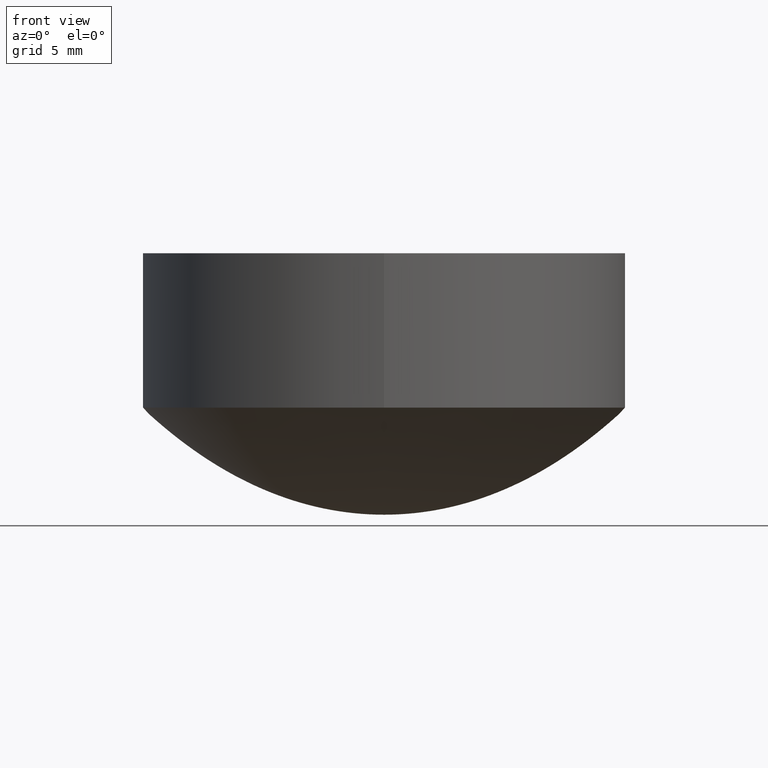
[diagram: clean part render]
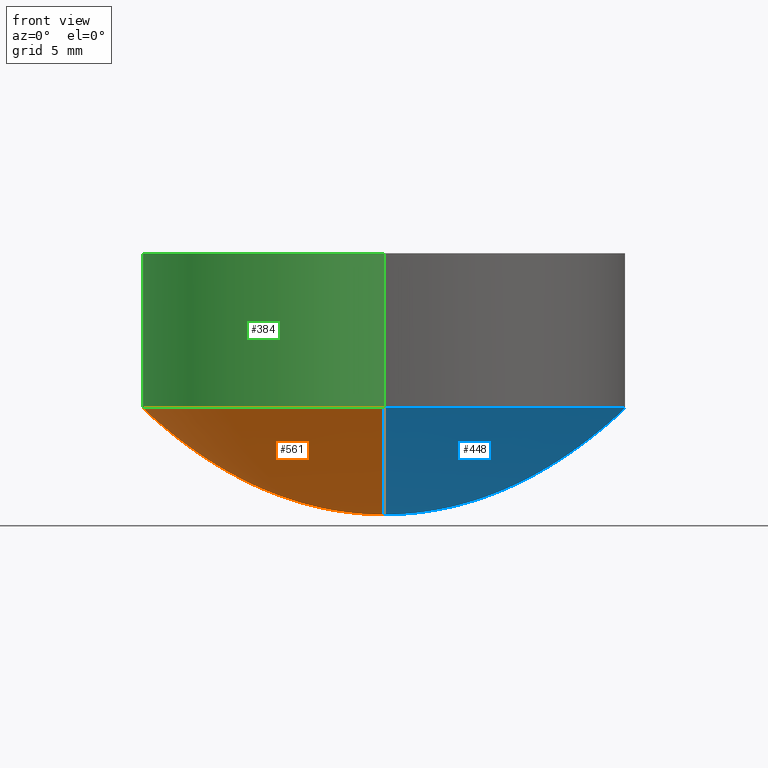
[diagram: same view with three faces highlighted in distinct colors, each labeled with its STEP entity id]
A machine part, front view with three faces highlighted in distinct colors.
Their STEP definitions:

[orange] entity #561 — the highlighted face is a freeform B-spline surface patch.
#2 = CARTESIAN_POINT ( 'NONE',  ( -1.467024811478604243E-15, -11.97916666666669983, 5.056251802364740477 ) ) ;
#5 = CARTESIAN_POINT ( 'NONE',  ( 0.000000000000000000, 10.02604166666669983, 3.481076923321679839 ) ) ;
#8 = CARTESIAN_POINT ( 'NONE',  ( -1.514862577070297857E-15, -12.36979166666670160, 5.410793714100290863 ) ) ;
#10 = CARTESIAN_POINT ( 'NONE',  ( -1.307565592839617902E-15, -10.67708333333330017, 3.970051861178839570 ) ) ;
#14 = CARTESIAN_POINT ( 'NONE',  ( 0.000000000000000000, 0.9114583333333330373, 0.02696010130595260026 ) ) ;
#16 = CARTESIAN_POINT ( 'NONE',  ( -1.259727827247924485E-15, -10.28645833333330017, 3.672405353409269768 ) ) ;
#21 = CARTESIAN_POINT ( 'NONE',  ( 0.000000000000000000, 7.552083333333329485, 1.937867421756819919 ) ) ;
#25 = CARTESIAN_POINT ( 'NONE',  ( 0.000000000000000000, 6.119791666666670515, 1.261127561754200155 ) ) ;
#26 = CARTESIAN_POINT ( 'NONE',  ( 0.000000000000000000, 0.9114583333333330373, 0.02696010130595260026 ) ) ;
#32 = CARTESIAN_POINT ( 'NONE',  ( -14.58333333333333925, -7.291666666666667851, 1.803357601749230099 ) ) ;
#36 = CARTESIAN_POINT ( 'NONE',  ( -9.895833333333339255, 4.947916666666669627, 0.8193248619857049775 ) ) ;
#37 = EDGE_CURVE ( 'NONE', #885, #313, #557, .T. ) ;
#40 = CARTESIAN_POINT ( 'NONE',  ( -13.80208333333333570, 6.901041666666670515, 1.611231632509070089 ) ) ;
#41 = CARTESIAN_POINT ( 'NONE',  ( 0.000000000000000000, 11.97916666666669983, 5.056251802364740477 ) ) ;
#43 = CARTESIAN_POINT ( 'NONE',  ( -7.335124057392997547E-16, -5.989583333333330373, 1.207146599300920276 ) ) ;
#44 = CARTESIAN_POINT ( 'NONE',  ( -4.145939684613439356E-16, -3.385416666666669627, 0.3809780740113539732 ) ) ;
#47 = CARTESIAN_POINT ( 'NONE',  ( -7.291666666666659857, 3.645833333333330817, 0.4423083327651770036 ) ) ;
#48 = CARTESIAN_POINT ( 'NONE',  ( 0.000000000000000000, 9.505208333333330373, 3.115285295920330100 ) ) ;
#51 = CARTESIAN_POINT ( 'NONE',  ( -24.73958333333339255, -12.36979166666669627, 5.410793714100290863 ) ) ;
#53 = CARTESIAN_POINT ( 'NONE',  ( -4.166666666666659857, -2.083333333333329929, 0.1434559826824610140 ) ) ;
#54 = CARTESIAN_POINT ( 'NONE',  ( 0.000000000000000000, 12.50000000000000000, 5.532697925372699999 ) ) ;
#56 = CARTESIAN_POINT ( 'NONE',  ( 0.000000000000000000, 11.97916666666669983, 5.056251802364740477 ) ) ;
#59 = CARTESIAN_POINT ( 'NONE',  ( -8.333333333333337478, 4.166666666666669627, 0.5789594727108891004 ) ) ;
#60 = CARTESIAN_POINT ( 'NONE',  ( 0.000000000000000000, 9.635416666666671404, 3.204637837796209698 ) ) ;
#63 = CARTESIAN_POINT ( 'NONE',  ( -21.35416666666660035, 10.67708333333330017, 3.970051861178839570 ) ) ;
#65 = CARTESIAN_POINT ( 'NONE',  ( -5.729166666666658969, 2.864583333333329929, 0.2722051425236460265 ) ) ;
#66 = CARTESIAN_POINT ( 'NONE',  ( 0.000000000000000000, 8.723958333333330373, 2.608031419613510149 ) ) ;
#72 = CARTESIAN_POINT ( 'NONE',  ( -7.291666666666659857, -3.645833333333329929, 0.4423083327651770036 ) ) ;
#73 = CARTESIAN_POINT ( 'NONE',  ( 0.000000000000000000, 5.338541666666670515, 0.9556462356517030354 ) ) ;
#78 = CARTESIAN_POINT ( 'NONE',  ( -1.323511514703523794E-15, -10.80729166666669983, 4.072128052357760097 ) ) ;
#79 = CARTESIAN_POINT ( 'NONE',  ( 0.000000000000000000, 8.072916666666671404, 2.222490478296089922 ) ) ;
#81 = CARTESIAN_POINT ( 'NONE',  ( -17.44791666666665719, -8.723958333333328596, 2.608031419613510149 ) ) ;
#84 = CARTESIAN_POINT ( 'NONE',  ( -9.727012336977669396E-16, -7.942708333333329485, 2.149371519664409647 ) ) ;
#86 = CARTESIAN_POINT ( 'NONE',  ( 0.000000000000000000, 8.854166666666669627, 2.689160670427069633 ) ) ;
#90 = CARTESIAN_POINT ( 'NONE',  ( -8.770257025143803023E-16, -7.161458333333330373, 1.738040346901970068 ) ) ;
#92 = CARTESIAN_POINT ( 'NONE',  ( -1.275673749111830376E-15, -10.41666666666670160, 3.770190524313230096 ) ) ;
#96 = CARTESIAN_POINT ( 'NONE',  ( -2.083333333333339699, -1.041666666666669849, 0.03538867447285129475 ) ) ;
#98 = CARTESIAN_POINT ( 'NONE',  ( 0.000000000000000000, 9.505208333333330373, 3.115285295920330100 ) ) ;
#103 = CARTESIAN_POINT ( 'NONE',  ( 0.000000000000000000, 8.072916666666671404, 2.222490478296089922 ) ) ;
#104 = CARTESIAN_POINT ( 'NONE',  ( 0.000000000000000000, 1.822916666666670071, 0.1096494599021779898 ) ) ;
#112 = CARTESIAN_POINT ( 'NONE',  ( -8.291879369226866878E-16, -6.770833333333330373, 1.549740163905060086 ) ) ;
#117 = CARTESIAN_POINT ( 'NONE',  ( -12.23958333333333748, 6.119791666666671404, 1.261127561754200155 ) ) ;
#118 = CARTESIAN_POINT ( 'NONE',  ( -7.016205620115047349E-16, -5.729166666666669627, 1.102873750050199941 ) ) ;
#124 = CARTESIAN_POINT ( 'NONE',  ( -9.248634681060737195E-16, -7.552083333333329485, 1.937867421756819919 ) ) ;
#129 = CARTESIAN_POINT ( 'NONE',  ( -9.114583333333337478, -4.557291666666668739, 0.6937973275370730164 ) ) ;
#130 = CARTESIAN_POINT ( 'NONE',  ( -5.899991089642192072E-16, -4.817708333333330373, 0.7762909546257500404 ) ) ;
#133 = CARTESIAN_POINT ( 'NONE',  ( -10.41666666666665897, 5.208333333333330373, 0.9090025009871489647 ) ) ;
#136 = CARTESIAN_POINT ( 'NONE',  ( 0.000000000000000000, 4.036458333333330373, 0.5430410602373090256 ) ) ;
#137 = CARTESIAN_POINT ( 'NONE',  ( -4.943235777808322740E-16, -4.036458333333330373, 0.5430410602373090256 ) ) ;
#139 = CARTESIAN_POINT ( 'NONE',  ( -22.39583333333339610, -11.19791666666669627, 4.387031412897309579 ) ) ;
#141 = CARTESIAN_POINT ( 'NONE',  ( -7.552083333333338366, 3.776041666666669627, 0.4747154907309730221 ) ) ;
#142 = VERTEX_POINT ( 'NONE', #222 ) ;
#144 = CARTESIAN_POINT ( 'NONE',  ( -3.189184372779570025E-16, -2.604166666666670071, 0.2247167165227910157 ) ) ;
#145 = CARTESIAN_POINT ( 'NONE',  ( -2.072969842306713515E-16, -1.692708333333329929, 0.09444824292321299386 ) ) ;
#147 = CARTESIAN_POINT ( 'NONE',  ( -21.61458333333339610, -10.80729166666669450, 4.072128052357760097 ) ) ;
#150 = CARTESIAN_POINT ( 'NONE',  ( -8.072916666666658969, -4.036458333333329485, 0.5430410602373090256 ) ) ;
#151 = CARTESIAN_POINT ( 'NONE',  ( 0.000000000000000000, 5.989583333333330373, 1.207146599300920276 ) ) ;
#153 = CARTESIAN_POINT ( 'NONE',  ( -22.13541666666659680, -11.06770833333329662, 4.280617814755749428 ) ) ;
#156 = CARTESIAN_POINT ( 'NONE',  ( -6.510416666666658081, 3.255208333333329485, 0.3520549727467690015 ) ) ;
#157 = CARTESIAN_POINT ( 'NONE',  ( 0.000000000000000000, 6.119791666666670515, 1.261127561754200155 ) ) ;
#163 = CARTESIAN_POINT ( 'NONE',  ( 0.000000000000000000, 6.380208333333329485, 1.372821912926829979 ) ) ;
#166 = CARTESIAN_POINT ( 'NONE',  ( -19.01041666666665719, 9.505208333333330373, 3.115285295920330100 ) ) ;
#169 = CARTESIAN_POINT ( 'NONE',  ( -1.116214530472847586E-15, -9.114583333333330373, 2.855504193561490212 ) ) ;
#171 = CARTESIAN_POINT ( 'NONE',  ( -18.48958333333333570, -9.244791666666667851, 2.940718483622410062 ) ) ;
#174 = CARTESIAN_POINT ( 'NONE',  ( -1.498916655206391965E-15, -12.23958333333330017, 5.291129057178469708 ) ) ;
#176 = CARTESIAN_POINT ( 'NONE',  ( -15.88541666666665542, -7.942708333333327708, 2.149371519664410091 ) ) ;
#180 = CARTESIAN_POINT ( 'NONE',  ( -8.929716243782786997E-16, -7.291666666666670515, 1.803357601749230099 ) ) ;
#182 = CARTESIAN_POINT ( 'NONE',  ( -15.36458333333333748, 7.682291666666669627, 2.007059997537649743 ) ) ;
#186 = CARTESIAN_POINT ( 'NONE',  ( 1.530808498934191521E-15, -12.50000000000000000, 5.532697925372699999 ) ) ;
#189 = CARTESIAN_POINT ( 'NONE',  ( 0.000000000000000000, 9.895833333333328596, 3.387533640728909834 ) ) ;
#190 = CARTESIAN_POINT ( 'NONE',  ( -6.537827964198114162E-16, -5.338541666666670515, 0.9556462356517030354 ) ) ;
#195 = CARTESIAN_POINT ( 'NONE',  ( -14.58333333333333570, 7.291666666666669627, 1.803357601749230099 ) ) ;
#202 = CARTESIAN_POINT ( 'NONE',  ( 0.000000000000000000, 5.598958333333329485, 1.052581858195479780 ) ) ;
#203 = CARTESIAN_POINT ( 'NONE',  ( 0.000000000000000000, 2.083333333333330373, 0.1434559826824609863 ) ) ;
#209 = CARTESIAN_POINT ( 'NONE',  ( 0.000000000000000000, 5.208333333333330373, 0.9090025009871489647 ) ) ;
#210 = CARTESIAN_POINT ( 'NONE',  ( -7.813501713309931720E-16, -6.380208333333329485, 1.372821912926829979 ) ) ;
#213 = CARTESIAN_POINT ( 'NONE',  ( -9.635416666666657193, -4.817708333333328596, 0.7762909546257499294 ) ) ;
#217 = CARTESIAN_POINT ( 'NONE',  ( 0.000000000000000000, 4.817708333333330373, 0.7762909546257500404 ) ) ;
#218 = CARTESIAN_POINT ( 'NONE',  ( -7.972960931948918898E-17, -0.6510416666666670737, 0.01347721739430680042 ) ) ;
#220 = CARTESIAN_POINT ( 'NONE',  ( 0.000000000000000000, 1.822916666666670071, 0.1096494599021779898 ) ) ;
#221 = CARTESIAN_POINT ( 'NONE',  ( -2.710806716862634373E-16, -2.213541666666669627, 0.1620612881267420313 ) ) ;
#222 = CARTESIAN_POINT ( 'NONE',  ( 0.000000000000000000, 0.000000000000000000, 0.000000000000000000 ) ) ;
#224 = CARTESIAN_POINT ( 'NONE',  ( 0.000000000000000000, 2.473958333333330373, 0.2026916551862039950 ) ) ;
#225 = CARTESIAN_POINT ( 'NONE',  ( -3.986480465974452916E-16, -3.255208333333329929, 0.3520549727467690015 ) ) ;
#229 = CARTESIAN_POINT ( 'NONE',  ( -2.232429060945700200E-16, -1.822916666666670071, 0.1096494599021779898 ) ) ;
#230 = CARTESIAN_POINT ( 'NONE',  ( -5.102694996447308687E-16, -4.166666666666670515, 0.5789594727108891004 ) ) ;
#233 = CARTESIAN_POINT ( 'NONE',  ( 0.000000000000000000, 11.58854166666669983, 4.715032710469319710 ) ) ;
#235 = CARTESIAN_POINT ( 'NONE',  ( -5.989583333333338366, -2.994791666666669183, 0.2976685070670040401 ) ) ;
#236 = CARTESIAN_POINT ( 'NONE',  ( 0.000000000000000000, 5.729166666666669627, 1.102873750050199941 ) ) ;
#240 = CARTESIAN_POINT ( 'NONE',  ( -8.333333333333337478, -4.166666666666668739, 0.5789594727108891004 ) ) ;
#241 = CARTESIAN_POINT ( 'NONE',  ( 0.000000000000000000, 2.864583333333329929, 0.2722051425236460265 ) ) ;
#246 = CARTESIAN_POINT ( 'NONE',  ( 0.000000000000000000, 0.000000000000000000, 0.000000000000000000 ) ) ;
#247 = CARTESIAN_POINT ( 'NONE',  ( 0.000000000000000000, 3.255208333333329929, 0.3520549727467690015 ) ) ;
#250 = CARTESIAN_POINT ( 'NONE',  ( -19.79166666666665719, 9.895833333333328596, 3.387533640728909390 ) ) ;
#253 = CARTESIAN_POINT ( 'NONE',  ( -1.451078889614698351E-15, -11.84895833333330017, 4.941039173460659129 ) ) ;
#255 = CARTESIAN_POINT ( 'NONE',  ( -16.14583333333333925, -8.072916666666669627, 2.222490478296089922 ) ) ;
#257 = CARTESIAN_POINT ( 'NONE',  ( -9.248634681060737195E-16, -7.552083333333329485, 1.937867421756819919 ) ) ;
#259 = CARTESIAN_POINT ( 'NONE',  ( -20.83333333333339965, -10.41666666666669983, 3.770190524313230096 ) ) ;
#262 = CARTESIAN_POINT ( 'NONE',  ( -9.886471555616659286E-16, -8.072916666666671404, 2.222490478296089922 ) ) ;
#264 = CARTESIAN_POINT ( 'NONE',  ( -15.88541666666665542, 7.942708333333329485, 2.149371519664410091 ) ) ;
#268 = CARTESIAN_POINT ( 'NONE',  ( 0.000000000000000000, 0.1302083333333330095, 0.000000000000000000 ) ) ;
#270 = CARTESIAN_POINT ( 'NONE',  ( -1.164052296064541200E-15, -9.505208333333330373, 3.115285295920330100 ) ) ;
#275 = CARTESIAN_POINT ( 'NONE',  ( -14.32291666666665897, 7.161458333333331261, 1.738040346901969624 ) ) ;
#280 = CARTESIAN_POINT ( 'NONE',  ( -11.97916666666665719, -5.989583333333328596, 1.207146599300920053 ) ) ;
#286 = CARTESIAN_POINT ( 'NONE',  ( 0.000000000000000000, 6.901041666666669627, 1.611231632509069867 ) ) ;
#292 = CARTESIAN_POINT ( 'NONE',  ( -13.80208333333333570, -6.901041666666667851, 1.611231632509070089 ) ) ;
#296 = CARTESIAN_POINT ( 'NONE',  ( -6.378368745559128216E-16, -5.208333333333330373, 0.9090025009871489647 ) ) ;
#299 = CARTESIAN_POINT ( 'NONE',  ( -4.947916666666658969, -2.473958333333329485, 0.2026916551862039950 ) ) ;
#303 = CARTESIAN_POINT ( 'NONE',  ( -6.770833333333337478, 3.385416666666670071, 0.3809780740113540287 ) ) ;
#304 = CARTESIAN_POINT ( 'NONE',  ( 0.000000000000000000, 11.45833333333330195, 4.604238846511139904 ) ) ;
#305 = CARTESIAN_POINT ( 'NONE',  ( -1.467024811478604243E-15, -11.97916666666669983, 5.056251802364740477 ) ) ;
#306 = CARTESIAN_POINT ( 'NONE',  ( -3.385416666666658525, -1.692708333333329263, 0.09444824292321299386 ) ) ;
#311 = CARTESIAN_POINT ( 'NONE',  ( -6.510416666666658081, -3.255208333333329040, 0.3520549727467690015 ) ) ;
#312 = CARTESIAN_POINT ( 'NONE',  ( 0.000000000000000000, 10.80729166666669983, 4.072128052357760097 ) ) ;
#313 = VERTEX_POINT ( 'NONE', #980 ) ;
#314 = CARTESIAN_POINT ( 'NONE',  ( -19.27083333333333570, 9.635416666666669627, 3.204637837796210142 ) ) ;
#315 = CARTESIAN_POINT ( 'NONE',  ( -1.371349280295217211E-15, -11.19791666666669983, 4.387031412897309579 ) ) ;
#319 = CARTESIAN_POINT ( 'NONE',  ( -3.385416666666658525, 1.692708333333329707, 0.09444824292321299386 ) ) ;
#320 = CARTESIAN_POINT ( 'NONE',  ( 0.000000000000000000, 6.901041666666669627, 1.611231632509069867 ) ) ;
#325 = CARTESIAN_POINT ( 'NONE',  ( -0.5208333333333339255, 0.2604166666666670182, 0.001684298128919400200 ) ) ;
#326 = CARTESIAN_POINT ( 'NONE',  ( 0.000000000000000000, 2.213541666666669627, 0.1620612881267420313 ) ) ;
#328 = CARTESIAN_POINT ( 'NONE',  ( -1.403241124023004934E-15, -11.45833333333330195, 4.604238846511139904 ) ) ;
#330 = CARTESIAN_POINT ( 'NONE',  ( -1.307565592839617902E-15, -10.67708333333330017, 3.970051861178839570 ) ) ;
#332 = CARTESIAN_POINT ( 'NONE',  ( -17.70833333333333570, 8.854166666666671404, 2.689160670427069633 ) ) ;
#336 = CARTESIAN_POINT ( 'NONE',  ( -1.211890061656234420E-15, -9.895833333333328596, 3.387533640728909834 ) ) ;
#338 = CARTESIAN_POINT ( 'NONE',  ( -1.132160452336746180E-15, -9.244791666666669627, 2.940718483622410062 ) ) ;
#340 = CARTESIAN_POINT ( 'NONE',  ( -3.189184372779570394E-17, -0.2604166666666670182, 0.001684298128919400200 ) ) ;
#342 = CARTESIAN_POINT ( 'NONE',  ( -19.27083333333333570, -9.635416666666667851, 3.204637837796210142 ) ) ;
#348 = CARTESIAN_POINT ( 'NONE',  ( 0.000000000000000000, 0.5208333333333330373, 0.008422906889584330647 ) ) ;
#350 = CARTESIAN_POINT ( 'NONE',  ( -17.44791666666665719, 8.723958333333330373, 2.608031419613510149 ) ) ;
#357 = CARTESIAN_POINT ( 'NONE',  ( 0.000000000000000000, 8.333333333333330373, 2.372707010147719675 ) ) ;
#364 = CARTESIAN_POINT ( 'NONE',  ( -7.494583276031983493E-16, -6.119791666666670515, 1.261127561754200155 ) ) ;
#365 = CARTESIAN_POINT ( 'NONE',  ( -7.972960931948917666E-16, -6.510416666666669627, 1.430535307915089982 ) ) ;
#369 = CARTESIAN_POINT ( 'NONE',  ( -12.76041666666665897, -6.380208333333329485, 1.372821912926829979 ) ) ;
#370 = CARTESIAN_POINT ( 'NONE',  ( 0.000000000000000000, 0.1302083333333330095, 0.000000000000000000 ) ) ;
#375 = CARTESIAN_POINT ( 'NONE',  ( -9.895833333333339255, -4.947916666666669627, 0.8193248619857049775 ) ) ;
#376 = CARTESIAN_POINT ( 'NONE',  ( -6.856746401476061403E-16, -5.598958333333329485, 1.052581858195479780 ) ) ;
#382 = CARTESIAN_POINT ( 'NONE',  ( 0.000000000000000000, 5.729166666666669627, 1.102873750050199941 ) ) ;
#383 = CARTESIAN_POINT ( 'NONE',  ( 0.000000000000000000, 10.02604166666669983, 3.481076923321679839 ) ) ;
#386 = CARTESIAN_POINT ( 'NONE',  ( -8.854166666666657193, 4.427083333333330373, 0.6543376056079249770 ) ) ;
#387 = CARTESIAN_POINT ( 'NONE',  ( -1.275673749111830623E-16, -1.041666666666670071, 0.03538867447285129475 ) ) ;
#388 = CARTESIAN_POINT ( 'NONE',  ( 0.000000000000000000, 0.000000000000000000, 5.532697925372699999 ) ) ;
#391 = CARTESIAN_POINT ( 'NONE',  ( -5.421613433725257899E-16, -4.427083333333329485, 0.6543376056079249770 ) ) ;
#392 = CARTESIAN_POINT ( 'NONE',  ( 0.000000000000000000, 9.244791666666669627, 2.940718483622410062 ) ) ;
#393 = DIRECTION ( 'NONE',  ( 0.000000000000000000, 1.000000000000000000, 0.000000000000000000 ) ) ;
#394 = CARTESIAN_POINT ( 'NONE',  ( 0.000000000000000000, 10.80729166666669983, 4.072128052357760097 ) ) ;
#397 = CARTESIAN_POINT ( 'NONE',  ( 0.000000000000000000, 3.776041666666669627, 0.4747154907309730221 ) ) ;
#398 = CARTESIAN_POINT ( 'NONE',  ( 0.000000000000000000, 12.23958333333330017, 5.291129057178469708 ) ) ;
#400 = CARTESIAN_POINT ( 'NONE',  ( -22.91666666666660035, 11.45833333333330195, 4.604238846511139904 ) ) ;
#402 = CARTESIAN_POINT ( 'NONE',  ( 0.000000000000000000, 2.083333333333330373, 0.1434559826824609863 ) ) ;
#403 = CARTESIAN_POINT ( 'NONE',  ( 0.000000000000000000, 11.58854166666669983, 4.715032710469319710 ) ) ;
#408 = CARTESIAN_POINT ( 'NONE',  ( -4.427083333333338366, 2.213541666666669627, 0.1620612881267420313 ) ) ;
#409 = CARTESIAN_POINT ( 'NONE',  ( 0.000000000000000000, 8.333333333333330373, 2.372707010147719675 ) ) ;
#412 = CARTESIAN_POINT ( 'NONE',  ( -1.451078889614698351E-15, -11.84895833333330017, 4.941039173460659129 ) ) ;
#414 = CARTESIAN_POINT ( 'NONE',  ( -1.179998217928439795E-15, -9.635416666666671404, 3.204637837796209698 ) ) ;
#415 = CARTESIAN_POINT ( 'NONE',  ( 0.000000000000000000, 3.776041666666669627, 0.4747154907309730221 ) ) ;
#417 = CARTESIAN_POINT ( 'NONE',  ( -24.47916666666659324, 12.23958333333330017, 5.291129057178469708 ) ) ;
#420 = CARTESIAN_POINT ( 'NONE',  ( -1.594592186389779034E-17, -0.1302083333333330095, 0.000000000000000000 ) ) ;
#421 = CARTESIAN_POINT ( 'NONE',  ( 0.000000000000000000, 4.166666666666670515, 0.5789594727108891004 ) ) ;
#423 = CARTESIAN_POINT ( 'NONE',  ( -18.22916666666665719, 9.114583333333332149, 2.855504193561490212 ) ) ;
#425 = CARTESIAN_POINT ( 'NONE',  ( -1.041666666666665853, 0.5208333333333330373, 0.008422906889584330647 ) ) ;
#427 = CARTESIAN_POINT ( 'NONE',  ( -18.22916666666665719, -9.114583333333328596, 2.855504193561490212 ) ) ;
#431 = CARTESIAN_POINT ( 'NONE',  ( -8.291879369226866878E-16, -6.770833333333330373, 1.549740163905060086 ) ) ;
#434 = CARTESIAN_POINT ( 'NONE',  ( -20.05208333333339610, -10.02604166666669805, 3.481076923321680283 ) ) ;
#437 = CARTESIAN_POINT ( 'NONE',  ( -0.2604166666666659635, 0.1302083333333330095, 0.000000000000000000 ) ) ;
#439 = CARTESIAN_POINT ( 'NONE',  ( -15.36458333333333748, -7.682291666666668739, 2.007059997537649743 ) ) ;
#440 = CARTESIAN_POINT ( 'NONE',  ( 0.000000000000000000, 0.000000000000000000, 0.000000000000000000 ) ) ;
#445 = CARTESIAN_POINT ( 'NONE',  ( 0.000000000000000000, 7.942708333333329485, 2.149371519664409647 ) ) ;
#451 = CARTESIAN_POINT ( 'NONE',  ( -8.451338587865852824E-16, -6.901041666666669627, 1.611231632509069867 ) ) ;
#453 = CARTESIAN_POINT ( 'NONE',  ( 0.000000000000000000, 1.302083333333329929, 0.05562717383516310038 ) ) ;
#457 = CARTESIAN_POINT ( 'NONE',  ( 0.000000000000000000, 5.338541666666670515, 0.9556462356517030354 ) ) ;
#458 = CARTESIAN_POINT ( 'NONE',  ( 0.000000000000000000, 0.6510416666666670737, 0.01347721739430680042 ) ) ;
#463 = CARTESIAN_POINT ( 'NONE',  ( -12.23958333333333748, -6.119791666666668739, 1.261127561754200155 ) ) ;
#469 = CARTESIAN_POINT ( 'NONE',  ( 0.000000000000000000, 6.770833333333330373, 1.549740163905060086 ) ) ;
#470 = CARTESIAN_POINT ( 'NONE',  ( 0.000000000000000000, 12.50000000000000000, 5.532697925372699999 ) ) ;
#473 = CARTESIAN_POINT ( 'NONE',  ( -5.581072652364243845E-16, -4.557291666666669627, 0.6937973275370730164 ) ) ;
#474 = CARTESIAN_POINT ( 'NONE',  ( -3.667562028696504690E-16, -2.994791666666670071, 0.2976685070670039845 ) ) ;
#475 = EDGE_LOOP ( 'NONE', ( #479, #990, #976 ) ) ;
#477 = CARTESIAN_POINT ( 'NONE',  ( -5.102694996447308687E-16, -4.166666666666670515, 0.5789594727108891004 ) ) ;
#478 = CARTESIAN_POINT ( 'NONE',  ( -3.508102810057518251E-16, -2.864583333333329929, 0.2722051425236460265 ) ) ;
#479 = ORIENTED_EDGE ( 'NONE', *, *, #598, .F. ) ;
#480 = CARTESIAN_POINT ( 'NONE',  ( -22.13541666666659680, 11.06770833333330195, 4.280617814755749428 ) ) ;
#483 = CARTESIAN_POINT ( 'NONE',  ( 0.000000000000000000, 2.213541666666669627, 0.1620612881267420313 ) ) ;
#484 = CARTESIAN_POINT ( 'NONE',  ( -4.624317340530374514E-16, -3.776041666666669627, 0.4747154907309730221 ) ) ;
#487 = CARTESIAN_POINT ( 'NONE',  ( -1.419187045886910825E-15, -11.58854166666669983, 4.715032710469319710 ) ) ;
#489 = CARTESIAN_POINT ( 'NONE',  ( -4.145939684613439356E-16, -3.385416666666669627, 0.3809780740113539732 ) ) ;
#492 = CARTESIAN_POINT ( 'NONE',  ( -24.47916666666659324, -12.23958333333329662, 5.291129057178469708 ) ) ;
#495 = CARTESIAN_POINT ( 'NONE',  ( 0.000000000000000000, 3.645833333333330373, 0.4423083327651770036 ) ) ;
#496 = CARTESIAN_POINT ( 'NONE',  ( 0.000000000000000000, 5.598958333333329485, 1.052581858195479780 ) ) ;
#498 = CARTESIAN_POINT ( 'NONE',  ( -1.355403358431311319E-15, -11.06770833333330017, 4.280617814755749428 ) ) ;
#501 = CARTESIAN_POINT ( 'NONE',  ( -5.729166666666658969, -2.864583333333329485, 0.2722051425236460265 ) ) ;
#502 = CARTESIAN_POINT ( 'NONE',  ( 0.000000000000000000, 7.291666666666670515, 1.803357601749230099 ) ) ;
#505 = CARTESIAN_POINT ( 'NONE',  ( 0.000000000000000000, 12.36979166666670160, 5.410793714100290863 ) ) ;
#507 = CARTESIAN_POINT ( 'NONE',  ( -1.594592186389778603E-16, -1.302083333333329929, 0.05562717383516310038 ) ) ;
#508 = CARTESIAN_POINT ( 'NONE',  ( 0.000000000000000000, 2.604166666666670071, 0.2247167165227910157 ) ) ;
#510 = CARTESIAN_POINT ( 'NONE',  ( -20.05208333333339610, 10.02604166666669983, 3.481076923321680283 ) ) ;
#513 = CARTESIAN_POINT ( 'NONE',  ( -1.403241124023004934E-15, -11.45833333333330195, 4.604238846511139904 ) ) ;
#515 = CARTESIAN_POINT ( 'NONE',  ( -1.227835983520136762E-15, -10.02604166666669983, 3.481076923321679839 ) ) ;
#518 = CARTESIAN_POINT ( 'NONE',  ( -1.259727827247924485E-15, -10.28645833333330017, 3.672405353409269768 ) ) ;
#520 = CARTESIAN_POINT ( 'NONE',  ( -9.727012336977669396E-16, -7.942708333333329485, 2.149371519664409647 ) ) ;
#524 = CARTESIAN_POINT ( 'NONE',  ( -1.822916666666665630, 0.9114583333333331483, 0.02696010130595259333 ) ) ;
#526 = CARTESIAN_POINT ( 'NONE',  ( -1.179998217928439795E-15, -9.635416666666671404, 3.204637837796209698 ) ) ;
#527 = CARTESIAN_POINT ( 'NONE',  ( 0.000000000000000000, 0.5208333333333330373, 0.008422906889584330647 ) ) ;
#530 = CARTESIAN_POINT ( 'NONE',  ( -1.371349280295217211E-15, -11.19791666666669983, 4.387031412897309579 ) ) ;
#532 = CARTESIAN_POINT ( 'NONE',  ( -20.83333333333339965, 10.41666666666670160, 3.770190524313230096 ) ) ;
#537 = CARTESIAN_POINT ( 'NONE',  ( -14.32291666666665897, -7.161458333333329485, 1.738040346901969624 ) ) ;
#538 = CARTESIAN_POINT ( 'NONE',  ( 0.000000000000000000, 1.692708333333329929, 0.09444824292321299386 ) ) ;
#544 = CARTESIAN_POINT ( 'NONE',  ( -11.19791666666665897, -5.598958333333328596, 1.052581858195479780 ) ) ;
#549 = CARTESIAN_POINT ( 'NONE',  ( -10.41666666666665897, -5.208333333333329485, 0.9090025009871489647 ) ) ;
#552 = CARTESIAN_POINT ( 'NONE',  ( -7.813501713309931720E-16, -6.380208333333329485, 1.372821912926829979 ) ) ;
#555 = CARTESIAN_POINT ( 'NONE',  ( 0.000000000000000000, 4.557291666666669627, 0.6937973275370730164 ) ) ;
#556 = CARTESIAN_POINT ( 'NONE',  ( 0.000000000000000000, 0.000000000000000000, 0.000000000000000000 ) ) ;
#557 = CIRCLE ( 'NONE', #839, 12.50000000000000000 ) ;
#558 = CARTESIAN_POINT ( 'NONE',  ( -4.427083333333338366, -2.213541666666669183, 0.1620612881267420313 ) ) ;
#559 = CARTESIAN_POINT ( 'NONE',  ( -5.421613433725257899E-16, -4.427083333333329485, 0.6543376056079249770 ) ) ;
#561 = ADVANCED_FACE ( 'NONE', ( #663 ), #730, .T. ) ;
#562 = CARTESIAN_POINT ( 'NONE',  ( 0.000000000000000000, 11.19791666666669983, 4.387031412897309579 ) ) ;
#564 = CARTESIAN_POINT ( 'NONE',  ( -3.029725154140583585E-16, -2.473958333333330373, 0.2026916551862039950 ) ) ;
#565 = CARTESIAN_POINT ( 'NONE',  ( 0.000000000000000000, 8.854166666666669627, 2.689160670427069633 ) ) ;
#567 = CARTESIAN_POINT ( 'NONE',  ( -1.498916655206391965E-15, -12.23958333333330017, 5.291129057178469708 ) ) ;
#570 = CARTESIAN_POINT ( 'NONE',  ( 0.000000000000000000, 1.432291666666670071, 0.06743709970546100940 ) ) ;
#572 = CARTESIAN_POINT ( 'NONE',  ( 0.000000000000000000, 11.06770833333330017, 4.280617814755749428 ) ) ;
#575 = CARTESIAN_POINT ( 'NONE',  ( 0.000000000000000000, 2.864583333333329929, 0.2722051425236460265 ) ) ;
#576 = CARTESIAN_POINT ( 'NONE',  ( 0.000000000000000000, 2.473958333333330373, 0.2026916551862039950 ) ) ;
#579 = CARTESIAN_POINT ( 'NONE',  ( -23.95833333333339255, 11.97916666666670160, 5.056251802364739589 ) ) ;
#582 = CARTESIAN_POINT ( 'NONE',  ( -6.770833333333337478, -3.385416666666668739, 0.3809780740113540287 ) ) ;
#583 = CARTESIAN_POINT ( 'NONE',  ( 0.000000000000000000, 7.161458333333330373, 1.738040346901970068 ) ) ;
#587 = CARTESIAN_POINT ( 'NONE',  ( -1.822916666666666075, -0.9114583333333328152, 0.02696010130595259333 ) ) ;
#588 = CARTESIAN_POINT ( 'NONE',  ( 0.000000000000000000, 4.817708333333330373, 0.7762909546257500404 ) ) ;
#591 = CARTESIAN_POINT ( 'NONE',  ( -16.66666666666665719, 8.333333333333328596, 2.372707010147719675 ) ) ;
#593 = CARTESIAN_POINT ( 'NONE',  ( -1.275673749111830623E-16, -1.041666666666670071, 0.03538867447285129475 ) ) ;
#595 = CARTESIAN_POINT ( 'NONE',  ( -1.084322686745052763E-15, -8.854166666666669627, 2.689160670427069633 ) ) ;
#598 = EDGE_CURVE ( 'NONE', #313, #142, #860, .T. ) ;
#599 = CARTESIAN_POINT ( 'NONE',  ( -2.604166666666659857, -1.302083333333329929, 0.05562717383516310732 ) ) ;
#601 = CARTESIAN_POINT ( 'NONE',  ( -16.92708333333333925, -8.463541666666669627, 2.449804597405109696 ) ) ;
#604 = CARTESIAN_POINT ( 'NONE',  ( -8.451338587865852824E-16, -6.901041666666669627, 1.611231632509069867 ) ) ;
#606 = CARTESIAN_POINT ( 'NONE',  ( 0.000000000000000000, 7.682291666666669627, 2.007059997537650187 ) ) ;
#610 = CARTESIAN_POINT ( 'NONE',  ( 0.000000000000000000, 0.000000000000000000, 0.000000000000000000 ) ) ;
#613 = CARTESIAN_POINT ( 'NONE',  ( -1.068376764881154168E-15, -8.723958333333330373, 2.608031419613510149 ) ) ;
#617 = CARTESIAN_POINT ( 'NONE',  ( -11.97916666666665719, 5.989583333333330373, 1.207146599300920053 ) ) ;
#621 = CARTESIAN_POINT ( 'NONE',  ( -11.45833333333333748, 5.729166666666669627, 1.102873750050199941 ) ) ;
#622 = CARTESIAN_POINT ( 'NONE',  ( -7.494583276031983493E-16, -6.119791666666670515, 1.261127561754200155 ) ) ;
#627 = CARTESIAN_POINT ( 'NONE',  ( -11.19791666666665897, 5.598958333333330373, 1.052581858195479780 ) ) ;
#630 = CARTESIAN_POINT ( 'NONE',  ( 0.000000000000000000, 6.380208333333329485, 1.372821912926829979 ) ) ;
#634 = CARTESIAN_POINT ( 'NONE',  ( -10.67708333333333925, -5.338541666666668739, 0.9556462356517030354 ) ) ;
#637 = CARTESIAN_POINT ( 'NONE',  ( 0.000000000000000000, 2.994791666666670071, 0.2976685070670039845 ) ) ;
#638 = CARTESIAN_POINT ( 'NONE',  ( 0.000000000000000000, 11.84895833333330017, 4.941039173460659129 ) ) ;
#641 = CARTESIAN_POINT ( 'NONE',  ( 0.000000000000000000, 2.604166666666670071, 0.2247167165227910157 ) ) ;
#644 = CARTESIAN_POINT ( 'NONE',  ( -8.854166666666657193, -4.427083333333328596, 0.6543376056079249770 ) ) ;
#645 = CARTESIAN_POINT ( 'NONE',  ( 0.000000000000000000, 12.36979166666670160, 5.410793714100290863 ) ) ;
#647 = CARTESIAN_POINT ( 'NONE',  ( -23.17708333333339610, 11.58854166666669983, 4.715032710469319710 ) ) ;
#649 = CARTESIAN_POINT ( 'NONE',  ( -3.986480465974452916E-16, -3.255208333333329929, 0.3520549727467690015 ) ) ;
#655 = CARTESIAN_POINT ( 'NONE',  ( -2.864583333333339699, 1.432291666666670071, 0.06743709970546100940 ) ) ;
#656 = CARTESIAN_POINT ( 'NONE',  ( 0.000000000000000000, 5.208333333333330373, 0.9090025009871489647 ) ) ;
#661 = CARTESIAN_POINT ( 'NONE',  ( 0.000000000000000000, 3.645833333333330373, 0.4423083327651770036 ) ) ;
#663 = FACE_OUTER_BOUND ( 'NONE', #475, .T. ) ;
#665 = CARTESIAN_POINT ( 'NONE',  ( -1.275673749111830376E-15, -10.41666666666670160, 3.770190524313230096 ) ) ;
#670 = CARTESIAN_POINT ( 'NONE',  ( -9.886471555616659286E-16, -8.072916666666671404, 2.222490478296089922 ) ) ;
#673 = CARTESIAN_POINT ( 'NONE',  ( -9.408093899699721169E-16, -7.682291666666669627, 2.007059997537650187 ) ) ;
#675 = CARTESIAN_POINT ( 'NONE',  ( -16.92708333333333925, 8.463541666666669627, 2.449804597405109696 ) ) ;
#678 = CARTESIAN_POINT ( 'NONE',  ( -1.164052296064541200E-15, -9.505208333333330373, 3.115285295920330100 ) ) ;
#680 = CARTESIAN_POINT ( 'NONE',  ( -1.116214530472847586E-15, -9.114583333333330373, 2.855504193561490212 ) ) ;
#683 = CARTESIAN_POINT ( 'NONE',  ( 0.000000000000000000, 0.000000000000000000, 0.000000000000000000 ) ) ;
#685 = CARTESIAN_POINT ( 'NONE',  ( -1.020538999289460554E-15, -8.333333333333330373, 2.372707010147719675 ) ) ;
#692 = CARTESIAN_POINT ( 'NONE',  ( -15.10416666666665542, 7.552083333333330373, 1.937867421756820141 ) ) ;
#697 = CARTESIAN_POINT ( 'NONE',  ( 0.000000000000000000, 5.989583333333330373, 1.207146599300920276 ) ) ;
#702 = CARTESIAN_POINT ( 'NONE',  ( -10.67708333333333925, 5.338541666666670515, 0.9556462356517030354 ) ) ;
#710 = CARTESIAN_POINT ( 'NONE',  ( -13.02083333333333393, -6.510416666666666963, 1.430535307915089982 ) ) ;
#711 = CARTESIAN_POINT ( 'NONE',  ( 0.000000000000000000, 10.28645833333330017, 3.672405353409269768 ) ) ;
#714 = B_SPLINE_CURVE_WITH_KNOTS ( 'NONE', 3,
 ( #470, #645, #398, #41, #638, #403, #304, #721, #975, #312, #985, #808, #711, #383, #1048, #60, #48, #392, #979, #565, #66, #819, #409, #79, #825, #919, #742, #502, #583, #320, #906, #994, #163, #157, #151, #236, #496, #73, #656, #912, #588, #1071, #999, #421, #736, #415, #661, #1080, #247, #813, #241, #508, #576, #326, #203, #104, #538, #868, #453, #944, #26, #458, #527, #782, #370, #440 ),
 .UNSPECIFIED., .F., .F.,
 ( 4, 2, 2, 2, 2, 2, 2, 2, 2, 2, 2, 2, 2, 2, 2, 2, 2, 2, 2, 2, 2, 2, 2, 2, 2, 2, 2, 2, 2, 2, 2, 2, 4 ),
 ( -1.000000000000000000, -0.9687500000000000000, -0.9375000000000000000, -0.9062500000000000000, -0.8750000000000000000, -0.8437500000000000000, -0.8125000000000000000, -0.7812500000000000000, -0.7500000000000000000, -0.7187500000000000000, -0.6875000000000000000, -0.6562500000000000000, -0.6250000000000000000, -0.5937500000000000000, -0.5625000000000000000, -0.5312500000000000000, -0.5000000000000000000, -0.4687500000000000000, -0.4375000000000000000, -0.4062500000000000000, -0.3750000000000000000, -0.3437500000000000000, -0.3125000000000000000, -0.2812500000000000000, -0.2500000000000000000, -0.2187500000000000000, -0.1875000000000000000, -0.1562500000000000000, -0.1250000000000000000, -0.09375000000000000000, -0.06250000000000000000, -0.03125000000000000000, 0.000000000000000000 ),
 .UNSPECIFIED. ) ;
#715 = CARTESIAN_POINT ( 'NONE',  ( 0.000000000000000000, 3.385416666666669627, 0.3809780740113539732 ) ) ;
#716 = CARTESIAN_POINT ( 'NONE',  ( -1.594592186389778603E-16, -1.302083333333329929, 0.05562717383516310038 ) ) ;
#720 = CARTESIAN_POINT ( 'NONE',  ( 0.000000000000000000, 3.255208333333329929, 0.3520549727467690015 ) ) ;
#721 = CARTESIAN_POINT ( 'NONE',  ( 0.000000000000000000, 11.19791666666669983, 4.387031412897309579 ) ) ;
#723 = CARTESIAN_POINT ( 'NONE',  ( 0.000000000000000000, 12.23958333333330017, 5.291129057178469708 ) ) ;
#725 = CARTESIAN_POINT ( 'NONE',  ( -3.667562028696504690E-16, -2.994791666666670071, 0.2976685070670039845 ) ) ;
#726 = DIRECTION ( 'NONE',  ( 0.000000000000000000, 0.000000000000000000, 1.000000000000000000 ) ) ;
#727 = CARTESIAN_POINT ( 'NONE',  ( -24.99999999999999645, -12.49999999999999822, 5.532697925372699999 ) ) ;
#728 = CARTESIAN_POINT ( 'NONE',  ( -2.864583333333339699, -1.432291666666669627, 0.06743709970546100940 ) ) ;
#729 = CARTESIAN_POINT ( 'NONE',  ( -1.116214530472847389E-16, -0.9114583333333330373, 0.02696010130595260026 ) ) ;
#730 =( BOUNDED_SURFACE ( )  B_SPLINE_SURFACE ( 3, 3, ( 
 ( #1067, #915, #727, #895 ),
 ( #505, #1063, #51, #821 ),
 ( #723, #417, #492, #567 ),
 ( #56, #579, #744, #305 ),
 ( #983, #801, #995, #412 ),
 ( #233, #647, #733, #487 ),
 ( #1082, #400, #1001, #328 ),
 ( #562, #986, #139, #315 ),
 ( #572, #480, #153, #498 ),
 ( #394, #902, #147, #810 ),
 ( #738, #63, #908, #10 ),
 ( #764, #532, #259, #92 ),
 ( #758, #942, #845, #16 ),
 ( #5, #510, #434, #515 ),
 ( #189, #250, #1021, #925 ),
 ( #851, #314, #342, #526 ),
 ( #98, #166, #749, #270 ),
 ( #1006, #936, #171, #338 ),
 ( #831, #423, #427, #680 ),
 ( #86, #332, #921, #595 ),
 ( #753, #350, #81, #613 ),
 ( #1015, #675, #601, #1010 ),
 ( #357, #591, #837, #685 ),
 ( #103, #930, #255, #670 ),
 ( #445, #264, #176, #520 ),
 ( #606, #182, #439, #770 ),
 ( #21, #692, #827, #124 ),
 ( #867, #195, #32, #969 ),
 ( #858, #275, #537, #786 ),
 ( #286, #40, #292, #451 ),
 ( #469, #781, #1031, #112 ),
 ( #948, #775, #710, #789 ),
 ( #630, #955, #369, #552 ),
 ( #25, #117, #463, #364 ),
 ( #697, #617, #280, #43 ),
 ( #382, #621, #1047, #1026 ),
 ( #202, #627, #544, #959 ),
 ( #457, #702, #634, #1037 ),
 ( #209, #133, #549, #296 ),
 ( #873, #36, #375, #1042 ),
 ( #217, #964, #213, #881 ),
 ( #555, #876, #129, #473 ),
 ( #793, #386, #644, #391 ),
 ( #978, #59, #240, #477 ),
 ( #136, #974, #150, #989 ),
 ( #397, #141, #898, #798 ),
 ( #495, #47, #72, #812 ),
 ( #715, #303, #582, #489 ),
 ( #720, #156, #311, #649 ),
 ( #637, #818, #235, #725 ),
 ( #575, #65, #501, #807 ),
 ( #641, #887, #893, #144 ),
 ( #224, #1055, #299, #564 ),
 ( #483, #408, #558, #735 ),
 ( #402, #802, #53, #1070 ),
 ( #220, #1049, #1060, #229 ),
 ( #911, #319, #306, #984 ),
 ( #570, #655, #728, #1065 ),
 ( #905, #993, #599, #507 ),
 ( #747, #928, #96, #593 ),
 ( #14, #524, #587, #762 ),
 ( #741, #1019, #918, #824 ),
 ( #348, #425, #849, #751 ),
 ( #756, #325, #842, #340 ),
 ( #268, #437, #1084, #420 ),
 ( #610, #683, #940, #246 ) ),
 .UNSPECIFIED., .F., .F., .T. ) 
 B_SPLINE_SURFACE_WITH_KNOTS ( ( 4, 2, 2, 2, 2, 2, 2, 2, 2, 2, 2, 2, 2, 2, 2, 2, 2, 2, 2, 2, 2, 2, 2, 2, 2, 2, 2, 2, 2, 2, 2, 2, 4 ),
 ( 4, 4 ),
 ( -1.000000000000000000, -0.9687500000000000000, -0.9375000000000000000, -0.9062500000000000000, -0.8750000000000000000, -0.8437500000000000000, -0.8125000000000000000, -0.7812500000000000000, -0.7500000000000000000, -0.7187500000000000000, -0.6875000000000000000, -0.6562500000000000000, -0.6250000000000000000, -0.5937500000000000000, -0.5625000000000000000, -0.5312500000000000000, -0.5000000000000000000, -0.4687500000000000000, -0.4375000000000000000, -0.4062500000000000000, -0.3750000000000000000, -0.3437500000000000000, -0.3125000000000000000, -0.2812500000000000000, -0.2500000000000000000, -0.2187500000000000000, -0.1875000000000000000, -0.1562500000000000000, -0.1250000000000000000, -0.09375000000000000000, -0.06250000000000000000, -0.03125000000000000000, 0.000000000000000000 ),
 ( 0.000000000000000000, 1.000000000000000000 ),
 .UNSPECIFIED. ) 
 GEOMETRIC_REPRESENTATION_ITEM ( )  RATIONAL_B_SPLINE_SURFACE ( (
 ( 1.000000000000000000, 0.3333333333333334259, 0.3333333333333334259, 1.000000000000000000),
 ( 1.000000000000000000, 0.3333333333333334259, 0.3333333333333334259, 1.000000000000000000),
 ( 1.000000000000000000, 0.3333333333333334259, 0.3333333333333334259, 1.000000000000000000),
 ( 1.000000000000000000, 0.3333333333333334259, 0.3333333333333334259, 1.000000000000000000),
 ( 1.000000000000000000, 0.3333333333333334259, 0.3333333333333334259, 1.000000000000000000),
 ( 1.000000000000000000, 0.3333333333333334259, 0.3333333333333334259, 1.000000000000000000),
 ( 1.000000000000000000, 0.3333333333333334259, 0.3333333333333334259, 1.000000000000000000),
 ( 1.000000000000000000, 0.3333333333333334259, 0.3333333333333334259, 1.000000000000000000),
 ( 1.000000000000000000, 0.3333333333333334259, 0.3333333333333334259, 1.000000000000000000),
 ( 1.000000000000000000, 0.3333333333333334259, 0.3333333333333334259, 1.000000000000000000),
 ( 1.000000000000000000, 0.3333333333333334259, 0.3333333333333334259, 1.000000000000000000),
 ( 1.000000000000000000, 0.3333333333333334259, 0.3333333333333334259, 1.000000000000000000),
 ( 1.000000000000000000, 0.3333333333333334259, 0.3333333333333334259, 1.000000000000000000),
 ( 1.000000000000000000, 0.3333333333333334259, 0.3333333333333334259, 1.000000000000000000),
 ( 1.000000000000000000, 0.3333333333333334259, 0.3333333333333334259, 1.000000000000000000),
 ( 1.000000000000000000, 0.3333333333333334259, 0.3333333333333334259, 1.000000000000000000),
 ( 1.000000000000000000, 0.3333333333333334259, 0.3333333333333334259, 1.000000000000000000),
 ( 1.000000000000000000, 0.3333333333333334259, 0.3333333333333334259, 1.000000000000000000),
 ( 1.000000000000000000, 0.3333333333333334259, 0.3333333333333334259, 1.000000000000000000),
 ( 1.000000000000000000, 0.3333333333333334259, 0.3333333333333334259, 1.000000000000000000),
 ( 1.000000000000000000, 0.3333333333333334259, 0.3333333333333334259, 1.000000000000000000),
 ( 1.000000000000000000, 0.3333333333333334259, 0.3333333333333334259, 1.000000000000000000),
 ( 1.000000000000000000, 0.3333333333333334259, 0.3333333333333334259, 1.000000000000000000),
 ( 1.000000000000000000, 0.3333333333333334259, 0.3333333333333334259, 1.000000000000000000),
 ( 1.000000000000000000, 0.3333333333333334259, 0.3333333333333334259, 1.000000000000000000),
 ( 1.000000000000000000, 0.3333333333333334259, 0.3333333333333334259, 1.000000000000000000),
 ( 1.000000000000000000, 0.3333333333333334259, 0.3333333333333334259, 1.000000000000000000),
 ( 1.000000000000000000, 0.3333333333333334259, 0.3333333333333334259, 1.000000000000000000),
 ( 1.000000000000000000, 0.3333333333333334259, 0.3333333333333334259, 1.000000000000000000),
 ( 1.000000000000000000, 0.3333333333333334259, 0.3333333333333334259, 1.000000000000000000),
 ( 1.000000000000000000, 0.3333333333333334259, 0.3333333333333334259, 1.000000000000000000),
 ( 1.000000000000000000, 0.3333333333333334259, 0.3333333333333334259, 1.000000000000000000),
 ( 1.000000000000000000, 0.3333333333333334259, 0.3333333333333334259, 1.000000000000000000),
 ( 1.000000000000000000, 0.3333333333333334259, 0.3333333333333334259, 1.000000000000000000),
 ( 1.000000000000000000, 0.3333333333333334259, 0.3333333333333334259, 1.000000000000000000),
 ( 1.000000000000000000, 0.3333333333333334259, 0.3333333333333334259, 1.000000000000000000),
 ( 1.000000000000000000, 0.3333333333333334259, 0.3333333333333334259, 1.000000000000000000),
 ( 1.000000000000000000, 0.3333333333333334259, 0.3333333333333334259, 1.000000000000000000),
 ( 1.000000000000000000, 0.3333333333333334259, 0.3333333333333334259, 1.000000000000000000),
 ( 1.000000000000000000, 0.3333333333333334259, 0.3333333333333334259, 1.000000000000000000),
 ( 1.000000000000000000, 0.3333333333333334259, 0.3333333333333334259, 1.000000000000000000),
 ( 1.000000000000000000, 0.3333333333333334259, 0.3333333333333334259, 1.000000000000000000),
 ( 1.000000000000000000, 0.3333333333333334259, 0.3333333333333334259, 1.000000000000000000),
 ( 1.000000000000000000, 0.3333333333333334259, 0.3333333333333334259, 1.000000000000000000),
 ( 1.000000000000000000, 0.3333333333333334259, 0.3333333333333334259, 1.000000000000000000),
 ( 1.000000000000000000, 0.3333333333333334259, 0.3333333333333334259, 1.000000000000000000),
 ( 1.000000000000000000, 0.3333333333333334259, 0.3333333333333334259, 1.000000000000000000),
 ( 1.000000000000000000, 0.3333333333333334259, 0.3333333333333334259, 1.000000000000000000),
 ( 1.000000000000000000, 0.3333333333333334259, 0.3333333333333334259, 1.000000000000000000),
 ( 1.000000000000000000, 0.3333333333333334259, 0.3333333333333334259, 1.000000000000000000),
 ( 1.000000000000000000, 0.3333333333333334259, 0.3333333333333334259, 1.000000000000000000),
 ( 1.000000000000000000, 0.3333333333333334259, 0.3333333333333334259, 1.000000000000000000),
 ( 1.000000000000000000, 0.3333333333333334259, 0.3333333333333334259, 1.000000000000000000),
 ( 1.000000000000000000, 0.3333333333333334259, 0.3333333333333334259, 1.000000000000000000),
 ( 1.000000000000000000, 0.3333333333333334259, 0.3333333333333334259, 1.000000000000000000),
 ( 1.000000000000000000, 0.3333333333333334259, 0.3333333333333334259, 1.000000000000000000),
 ( 1.000000000000000000, 0.3333333333333334259, 0.3333333333333334259, 1.000000000000000000),
 ( 1.000000000000000000, 0.3333333333333334259, 0.3333333333333334259, 1.000000000000000000),
 ( 1.000000000000000000, 0.3333333333333334259, 0.3333333333333334259, 1.000000000000000000),
 ( 1.000000000000000000, 0.3333333333333334259, 0.3333333333333334259, 1.000000000000000000),
 ( 1.000000000000000000, 0.3333333333333334259, 0.3333333333333334259, 1.000000000000000000),
 ( 1.000000000000000000, 0.3333333333333334259, 0.3333333333333334259, 1.000000000000000000),
 ( 1.000000000000000000, 0.3333333333333334259, 0.3333333333333334259, 1.000000000000000000),
 ( 1.000000000000000000, 0.3333333333333334259, 0.3333333333333334259, 1.000000000000000000),
 ( 1.000000000000000000, 0.3333333333333334259, 0.3333333333333334259, 1.000000000000000000),
 ( 1.000000000000000000, 0.3333333333333334259, 0.3333333333333334259, 1.000000000000000000) ) ) 
 REPRESENTATION_ITEM ( '' )  SURFACE ( )  );
#733 = CARTESIAN_POINT ( 'NONE',  ( -23.17708333333339610, -11.58854166666669627, 4.715032710469319710 ) ) ;
#735 = CARTESIAN_POINT ( 'NONE',  ( -2.710806716862634373E-16, -2.213541666666669627, 0.1620612881267420313 ) ) ;
#736 = CARTESIAN_POINT ( 'NONE',  ( 0.000000000000000000, 4.036458333333330373, 0.5430410602373090256 ) ) ;
#738 = CARTESIAN_POINT ( 'NONE',  ( 0.000000000000000000, 10.67708333333330017, 3.970051861178839570 ) ) ;
#741 = CARTESIAN_POINT ( 'NONE',  ( 0.000000000000000000, 0.6510416666666670737, 0.01347721739430680042 ) ) ;
#742 = CARTESIAN_POINT ( 'NONE',  ( 0.000000000000000000, 7.552083333333329485, 1.937867421756819919 ) ) ;
#744 = CARTESIAN_POINT ( 'NONE',  ( -23.95833333333339255, -11.97916666666669627, 5.056251802364739589 ) ) ;
#747 = CARTESIAN_POINT ( 'NONE',  ( 0.000000000000000000, 1.041666666666670071, 0.03538867447285129475 ) ) ;
#749 = CARTESIAN_POINT ( 'NONE',  ( -19.01041666666665719, -9.505208333333328596, 3.115285295920330100 ) ) ;
#751 = CARTESIAN_POINT ( 'NONE',  ( -6.378368745559127230E-17, -0.5208333333333330373, 0.008422906889584330647 ) ) ;
#753 = CARTESIAN_POINT ( 'NONE',  ( 0.000000000000000000, 8.723958333333330373, 2.608031419613510149 ) ) ;
#756 = CARTESIAN_POINT ( 'NONE',  ( 0.000000000000000000, 0.2604166666666670182, 0.001684298128919400200 ) ) ;
#758 = CARTESIAN_POINT ( 'NONE',  ( 0.000000000000000000, 10.28645833333330017, 3.672405353409269768 ) ) ;
#762 = CARTESIAN_POINT ( 'NONE',  ( -1.116214530472847389E-16, -0.9114583333333330373, 0.02696010130595260026 ) ) ;
#764 = CARTESIAN_POINT ( 'NONE',  ( 0.000000000000000000, 10.41666666666670160, 3.770190524313230096 ) ) ;
#770 = CARTESIAN_POINT ( 'NONE',  ( -9.408093899699721169E-16, -7.682291666666669627, 2.007059997537650187 ) ) ;
#775 = CARTESIAN_POINT ( 'NONE',  ( -13.02083333333333393, 6.510416666666668739, 1.430535307915089982 ) ) ;
#781 = CARTESIAN_POINT ( 'NONE',  ( -13.54166666666665542, 6.770833333333329485, 1.549740163905059864 ) ) ;
#782 = CARTESIAN_POINT ( 'NONE',  ( 0.000000000000000000, 0.2604166666666670182, 0.001684298128919400200 ) ) ;
#786 = CARTESIAN_POINT ( 'NONE',  ( -8.770257025143803023E-16, -7.161458333333330373, 1.738040346901970068 ) ) ;
#789 = CARTESIAN_POINT ( 'NONE',  ( -7.972960931948917666E-16, -6.510416666666669627, 1.430535307915089982 ) ) ;
#790 = CARTESIAN_POINT ( 'NONE',  ( -1.754051405028765288E-16, -1.432291666666670071, 0.06743709970546100940 ) ) ;
#793 = CARTESIAN_POINT ( 'NONE',  ( 0.000000000000000000, 4.427083333333329485, 0.6543376056079249770 ) ) ;
#794 = CARTESIAN_POINT ( 'NONE',  ( -3.189184372779570025E-16, -2.604166666666670071, 0.2247167165227910157 ) ) ;
#798 = CARTESIAN_POINT ( 'NONE',  ( -4.624317340530374514E-16, -3.776041666666669627, 0.4747154907309730221 ) ) ;
#799 = CARTESIAN_POINT ( 'NONE',  ( -3.029725154140583585E-16, -2.473958333333330373, 0.2026916551862039950 ) ) ;
#801 = CARTESIAN_POINT ( 'NONE',  ( -23.69791666666658969, 11.84895833333330017, 4.941039173460659129 ) ) ;
#802 = CARTESIAN_POINT ( 'NONE',  ( -4.166666666666659857, 2.083333333333330373, 0.1434559826824610140 ) ) ;
#807 = CARTESIAN_POINT ( 'NONE',  ( -3.508102810057518251E-16, -2.864583333333329929, 0.2722051425236460265 ) ) ;
#808 = CARTESIAN_POINT ( 'NONE',  ( 0.000000000000000000, 10.41666666666670160, 3.770190524313230096 ) ) ;
#810 = CARTESIAN_POINT ( 'NONE',  ( -1.323511514703523794E-15, -10.80729166666669983, 4.072128052357760097 ) ) ;
#812 = CARTESIAN_POINT ( 'NONE',  ( -4.464858121891388568E-16, -3.645833333333330373, 0.4423083327651770036 ) ) ;
#813 = CARTESIAN_POINT ( 'NONE',  ( 0.000000000000000000, 2.994791666666670071, 0.2976685070670039845 ) ) ;
#818 = CARTESIAN_POINT ( 'NONE',  ( -5.989583333333338366, 2.994791666666670071, 0.2976685070670040401 ) ) ;
#819 = CARTESIAN_POINT ( 'NONE',  ( 0.000000000000000000, 8.463541666666671404, 2.449804597405110140 ) ) ;
#821 = CARTESIAN_POINT ( 'NONE',  ( -1.514862577070297857E-15, -12.36979166666670160, 5.410793714100290863 ) ) ;
#824 = CARTESIAN_POINT ( 'NONE',  ( -7.972960931948918898E-17, -0.6510416666666670737, 0.01347721739430680042 ) ) ;
#825 = CARTESIAN_POINT ( 'NONE',  ( 0.000000000000000000, 7.942708333333329485, 2.149371519664409647 ) ) ;
#827 = CARTESIAN_POINT ( 'NONE',  ( -15.10416666666665719, -7.552083333333327708, 1.937867421756820141 ) ) ;
#829 = CARTESIAN_POINT ( 'NONE',  ( -1.068376764881154168E-15, -8.723958333333330373, 2.608031419613510149 ) ) ;
#831 = CARTESIAN_POINT ( 'NONE',  ( 0.000000000000000000, 9.114583333333330373, 2.855504193561490212 ) ) ;
#835 = CARTESIAN_POINT ( 'NONE',  ( -1.020538999289460554E-15, -8.333333333333330373, 2.372707010147719675 ) ) ;
#837 = CARTESIAN_POINT ( 'NONE',  ( -16.66666666666665719, -8.333333333333328596, 2.372707010147719675 ) ) ;
#839 = AXIS2_PLACEMENT_3D ( 'NONE', #388, #726, #393 ) ;
#842 = CARTESIAN_POINT ( 'NONE',  ( -0.5208333333333339255, -0.2604166666666669627, 0.001684298128919400200 ) ) ;
#845 = CARTESIAN_POINT ( 'NONE',  ( -20.57291666666659680, -10.28645833333329840, 3.672405353409270212 ) ) ;
#846 = CARTESIAN_POINT ( 'NONE',  ( -6.378368745559128216E-16, -5.208333333333330373, 0.9090025009871489647 ) ) ;
#849 = CARTESIAN_POINT ( 'NONE',  ( -1.041666666666665853, -0.5208333333333329263, 0.008422906889584330647 ) ) ;
#851 = CARTESIAN_POINT ( 'NONE',  ( 0.000000000000000000, 9.635416666666671404, 3.204637837796209698 ) ) ;
#852 = CARTESIAN_POINT ( 'NONE',  ( -6.059450308281178018E-16, -4.947916666666669627, 0.8193248619857049775 ) ) ;
#858 = CARTESIAN_POINT ( 'NONE',  ( 0.000000000000000000, 7.161458333333330373, 1.738040346901970068 ) ) ;
#860 = B_SPLINE_CURVE_WITH_KNOTS ( 'NONE', 3,
 ( #186, #8, #174, #2, #253, #998, #513, #530, #1008, #78, #330, #665, #518, #923, #336, #414, #678, #1004, #169, #934, #829, #1013, #835, #262, #84, #673, #257, #180, #90, #604, #431, #365, #210, #622, #943, #118, #376, #190, #846, #852, #130, #970, #559, #230, #137, #484, #888, #44, #225, #474, #478, #794, #799, #221, #882, #1050, #145, #790, #716, #387, #729, #218, #877, #1061, #1056, #556 ),
 .UNSPECIFIED., .F., .F.,
 ( 4, 2, 2, 2, 2, 2, 2, 2, 2, 2, 2, 2, 2, 2, 2, 2, 2, 2, 2, 2, 2, 2, 2, 2, 2, 2, 2, 2, 2, 2, 2, 2, 4 ),
 ( -1.000000000000000000, -0.9687500000000000000, -0.9375000000000000000, -0.9062500000000000000, -0.8750000000000000000, -0.8437500000000000000, -0.8125000000000000000, -0.7812500000000000000, -0.7500000000000000000, -0.7187500000000000000, -0.6875000000000000000, -0.6562500000000000000, -0.6250000000000000000, -0.5937500000000000000, -0.5625000000000000000, -0.5312500000000000000, -0.5000000000000000000, -0.4687500000000000000, -0.4375000000000000000, -0.4062500000000000000, -0.3750000000000000000, -0.3437500000000000000, -0.3125000000000000000, -0.2812500000000000000, -0.2500000000000000000, -0.2187500000000000000, -0.1875000000000000000, -0.1562500000000000000, -0.1250000000000000000, -0.09375000000000000000, -0.06250000000000000000, -0.03125000000000000000, 0.000000000000000000 ),
 .UNSPECIFIED. ) ;
#867 = CARTESIAN_POINT ( 'NONE',  ( 0.000000000000000000, 7.291666666666670515, 1.803357601749230099 ) ) ;
#868 = CARTESIAN_POINT ( 'NONE',  ( 0.000000000000000000, 1.432291666666670071, 0.06743709970546100940 ) ) ;
#873 = CARTESIAN_POINT ( 'NONE',  ( 0.000000000000000000, 4.947916666666669627, 0.8193248619857049775 ) ) ;
#876 = CARTESIAN_POINT ( 'NONE',  ( -9.114583333333337478, 4.557291666666669627, 0.6937973275370730164 ) ) ;
#877 = CARTESIAN_POINT ( 'NONE',  ( -6.378368745559127230E-17, -0.5208333333333330373, 0.008422906889584330647 ) ) ;
#881 = CARTESIAN_POINT ( 'NONE',  ( -5.899991089642192072E-16, -4.817708333333330373, 0.7762909546257500404 ) ) ;
#882 = CARTESIAN_POINT ( 'NONE',  ( -2.551347498223648427E-16, -2.083333333333330373, 0.1434559826824609863 ) ) ;
#885 = VERTEX_POINT ( 'NONE', #54 ) ;
#887 = CARTESIAN_POINT ( 'NONE',  ( -5.208333333333339255, 2.604166666666670071, 0.2247167165227910435 ) ) ;
#888 = CARTESIAN_POINT ( 'NONE',  ( -4.464858121891388568E-16, -3.645833333333330373, 0.4423083327651770036 ) ) ;
#893 = CARTESIAN_POINT ( 'NONE',  ( -5.208333333333339255, -2.604166666666669627, 0.2247167165227910435 ) ) ;
#895 = CARTESIAN_POINT ( 'NONE',  ( -1.530808498934191521E-15, -12.50000000000000000, 5.532697925372699999 ) ) ;
#898 = CARTESIAN_POINT ( 'NONE',  ( -7.552083333333338366, -3.776041666666669183, 0.4747154907309730221 ) ) ;
#902 = CARTESIAN_POINT ( 'NONE',  ( -21.61458333333339610, 10.80729166666669983, 4.072128052357760097 ) ) ;
#905 = CARTESIAN_POINT ( 'NONE',  ( 0.000000000000000000, 1.302083333333329929, 0.05562717383516310038 ) ) ;
#906 = CARTESIAN_POINT ( 'NONE',  ( 0.000000000000000000, 6.770833333333330373, 1.549740163905060086 ) ) ;
#908 = CARTESIAN_POINT ( 'NONE',  ( -21.35416666666660035, -10.67708333333329840, 3.970051861178839570 ) ) ;
#911 = CARTESIAN_POINT ( 'NONE',  ( 0.000000000000000000, 1.692708333333329929, 0.09444824292321299386 ) ) ;
#912 = CARTESIAN_POINT ( 'NONE',  ( 0.000000000000000000, 4.947916666666669627, 0.8193248619857049775 ) ) ;
#915 = CARTESIAN_POINT ( 'NONE',  ( -24.99999999999999645, 12.50000000000000355, 5.532697925372699999 ) ) ;
#918 = CARTESIAN_POINT ( 'NONE',  ( -1.302083333333333925, -0.6510416666666669627, 0.01347721739430680042 ) ) ;
#919 = CARTESIAN_POINT ( 'NONE',  ( 0.000000000000000000, 7.682291666666669627, 2.007059997537650187 ) ) ;
#921 = CARTESIAN_POINT ( 'NONE',  ( -17.70833333333333570, -8.854166666666667851, 2.689160670427069633 ) ) ;
#923 = CARTESIAN_POINT ( 'NONE',  ( -1.227835983520136762E-15, -10.02604166666669983, 3.481076923321679839 ) ) ;
#925 = CARTESIAN_POINT ( 'NONE',  ( -1.211890061656234420E-15, -9.895833333333328596, 3.387533640728909834 ) ) ;
#928 = CARTESIAN_POINT ( 'NONE',  ( -2.083333333333339699, 1.041666666666670071, 0.03538867447285129475 ) ) ;
#930 = CARTESIAN_POINT ( 'NONE',  ( -16.14583333333333925, 8.072916666666671404, 2.222490478296089922 ) ) ;
#934 = CARTESIAN_POINT ( 'NONE',  ( -1.084322686745052763E-15, -8.854166666666669627, 2.689160670427069633 ) ) ;
#936 = CARTESIAN_POINT ( 'NONE',  ( -18.48958333333333570, 9.244791666666669627, 2.940718483622410062 ) ) ;
#940 = CARTESIAN_POINT ( 'NONE',  ( 0.000000000000000000, 0.000000000000000000, 0.000000000000000000 ) ) ;
#942 = CARTESIAN_POINT ( 'NONE',  ( -20.57291666666659680, 10.28645833333330017, 3.672405353409270212 ) ) ;
#943 = CARTESIAN_POINT ( 'NONE',  ( -7.335124057392997547E-16, -5.989583333333330373, 1.207146599300920276 ) ) ;
#944 = CARTESIAN_POINT ( 'NONE',  ( 0.000000000000000000, 1.041666666666670071, 0.03538867447285129475 ) ) ;
#948 = CARTESIAN_POINT ( 'NONE',  ( 0.000000000000000000, 6.510416666666669627, 1.430535307915089982 ) ) ;
#955 = CARTESIAN_POINT ( 'NONE',  ( -12.76041666666665897, 6.380208333333330373, 1.372821912926829979 ) ) ;
#959 = CARTESIAN_POINT ( 'NONE',  ( -6.856746401476061403E-16, -5.598958333333329485, 1.052581858195479780 ) ) ;
#964 = CARTESIAN_POINT ( 'NONE',  ( -9.635416666666657193, 4.817708333333329485, 0.7762909546257499294 ) ) ;
#969 = CARTESIAN_POINT ( 'NONE',  ( -8.929716243782786997E-16, -7.291666666666670515, 1.803357601749230099 ) ) ;
#970 = CARTESIAN_POINT ( 'NONE',  ( -5.581072652364243845E-16, -4.557291666666669627, 0.6937973275370730164 ) ) ;
#974 = CARTESIAN_POINT ( 'NONE',  ( -8.072916666666658969, 4.036458333333330373, 0.5430410602373090256 ) ) ;
#975 = CARTESIAN_POINT ( 'NONE',  ( 0.000000000000000000, 11.06770833333330017, 4.280617814755749428 ) ) ;
#976 = ORIENTED_EDGE ( 'NONE', *, *, #982, .T. ) ;
#978 = CARTESIAN_POINT ( 'NONE',  ( 0.000000000000000000, 4.166666666666670515, 0.5789594727108891004 ) ) ;
#979 = CARTESIAN_POINT ( 'NONE',  ( 0.000000000000000000, 9.114583333333330373, 2.855504193561490212 ) ) ;
#980 = CARTESIAN_POINT ( 'NONE',  ( 1.530808498934191521E-15, -12.50000000000000000, 5.532697925372699999 ) ) ;
#982 = EDGE_CURVE ( 'NONE', #885, #142, #714, .T. ) ;
#983 = CARTESIAN_POINT ( 'NONE',  ( 0.000000000000000000, 11.84895833333330017, 4.941039173460659129 ) ) ;
#984 = CARTESIAN_POINT ( 'NONE',  ( -2.072969842306713515E-16, -1.692708333333329929, 0.09444824292321299386 ) ) ;
#985 = CARTESIAN_POINT ( 'NONE',  ( 0.000000000000000000, 10.67708333333330017, 3.970051861178839570 ) ) ;
#986 = CARTESIAN_POINT ( 'NONE',  ( -22.39583333333339610, 11.19791666666669983, 4.387031412897309579 ) ) ;
#989 = CARTESIAN_POINT ( 'NONE',  ( -4.943235777808322740E-16, -4.036458333333330373, 0.5430410602373090256 ) ) ;
#990 = ORIENTED_EDGE ( 'NONE', *, *, #37, .F. ) ;
#993 = CARTESIAN_POINT ( 'NONE',  ( -2.604166666666659857, 1.302083333333329929, 0.05562717383516310732 ) ) ;
#994 = CARTESIAN_POINT ( 'NONE',  ( 0.000000000000000000, 6.510416666666669627, 1.430535307915089982 ) ) ;
#995 = CARTESIAN_POINT ( 'NONE',  ( -23.69791666666658969, -11.84895833333329485, 4.941039173460659129 ) ) ;
#998 = CARTESIAN_POINT ( 'NONE',  ( -1.419187045886910825E-15, -11.58854166666669983, 4.715032710469319710 ) ) ;
#999 = CARTESIAN_POINT ( 'NONE',  ( 0.000000000000000000, 4.427083333333329485, 0.6543376056079249770 ) ) ;
#1001 = CARTESIAN_POINT ( 'NONE',  ( -22.91666666666660035, -11.45833333333329662, 4.604238846511139904 ) ) ;
#1004 = CARTESIAN_POINT ( 'NONE',  ( -1.132160452336746180E-15, -9.244791666666669627, 2.940718483622410062 ) ) ;
#1006 = CARTESIAN_POINT ( 'NONE',  ( 0.000000000000000000, 9.244791666666669627, 2.940718483622410062 ) ) ;
#1008 = CARTESIAN_POINT ( 'NONE',  ( -1.355403358431311319E-15, -11.06770833333330017, 4.280617814755749428 ) ) ;
#1010 = CARTESIAN_POINT ( 'NONE',  ( -1.036484921153359543E-15, -8.463541666666671404, 2.449804597405110140 ) ) ;
#1013 = CARTESIAN_POINT ( 'NONE',  ( -1.036484921153359543E-15, -8.463541666666671404, 2.449804597405110140 ) ) ;
#1015 = CARTESIAN_POINT ( 'NONE',  ( 0.000000000000000000, 8.463541666666671404, 2.449804597405110140 ) ) ;
#1019 = CARTESIAN_POINT ( 'NONE',  ( -1.302083333333333925, 0.6510416666666670737, 0.01347721739430680042 ) ) ;
#1021 = CARTESIAN_POINT ( 'NONE',  ( -19.79166666666665719, -9.895833333333328596, 3.387533640728909390 ) ) ;
#1026 = CARTESIAN_POINT ( 'NONE',  ( -7.016205620115047349E-16, -5.729166666666669627, 1.102873750050199941 ) ) ;
#1031 = CARTESIAN_POINT ( 'NONE',  ( -13.54166666666665542, -6.770833333333327708, 1.549740163905059864 ) ) ;
#1037 = CARTESIAN_POINT ( 'NONE',  ( -6.537827964198114162E-16, -5.338541666666670515, 0.9556462356517030354 ) ) ;
#1042 = CARTESIAN_POINT ( 'NONE',  ( -6.059450308281178018E-16, -4.947916666666669627, 0.8193248619857049775 ) ) ;
#1047 = CARTESIAN_POINT ( 'NONE',  ( -11.45833333333333748, -5.729166666666667851, 1.102873750050199941 ) ) ;
#1048 = CARTESIAN_POINT ( 'NONE',  ( 0.000000000000000000, 9.895833333333328596, 3.387533640728909834 ) ) ;
#1049 = CARTESIAN_POINT ( 'NONE',  ( -3.645833333333339255, 1.822916666666670071, 0.1096494599021780036 ) ) ;
#1050 = CARTESIAN_POINT ( 'NONE',  ( -2.232429060945700200E-16, -1.822916666666670071, 0.1096494599021779898 ) ) ;
#1055 = CARTESIAN_POINT ( 'NONE',  ( -4.947916666666658969, 2.473958333333329929, 0.2026916551862039950 ) ) ;
#1056 = CARTESIAN_POINT ( 'NONE',  ( -1.594592186389779034E-17, -0.1302083333333330095, 0.000000000000000000 ) ) ;
#1060 = CARTESIAN_POINT ( 'NONE',  ( -3.645833333333340143, -1.822916666666669627, 0.1096494599021780036 ) ) ;
#1061 = CARTESIAN_POINT ( 'NONE',  ( -3.189184372779570394E-17, -0.2604166666666670182, 0.001684298128919400200 ) ) ;
#1063 = CARTESIAN_POINT ( 'NONE',  ( -24.73958333333339255, 12.36979166666669983, 5.410793714100290863 ) ) ;
#1065 = CARTESIAN_POINT ( 'NONE',  ( -1.754051405028765288E-16, -1.432291666666670071, 0.06743709970546100940 ) ) ;
#1067 = CARTESIAN_POINT ( 'NONE',  ( 0.000000000000000000, 12.50000000000000000, 5.532697925372699999 ) ) ;
#1070 = CARTESIAN_POINT ( 'NONE',  ( -2.551347498223648427E-16, -2.083333333333330373, 0.1434559826824609863 ) ) ;
#1071 = CARTESIAN_POINT ( 'NONE',  ( 0.000000000000000000, 4.557291666666669627, 0.6937973275370730164 ) ) ;
#1080 = CARTESIAN_POINT ( 'NONE',  ( 0.000000000000000000, 3.385416666666669627, 0.3809780740113539732 ) ) ;
#1082 = CARTESIAN_POINT ( 'NONE',  ( 0.000000000000000000, 11.45833333333330195, 4.604238846511139904 ) ) ;
#1084 = CARTESIAN_POINT ( 'NONE',  ( -0.2604166666666659635, -0.1302083333333329818, 0.000000000000000000 ) ) ;

[blue] entity #448 — the highlighted face is a freeform B-spline surface patch.
#2 = CARTESIAN_POINT ( 'NONE',  ( -1.467024811478604243E-15, -11.97916666666669983, 5.056251802364740477 ) ) ;
#4 = CARTESIAN_POINT ( 'NONE',  ( 23.69791666666659680, 11.84895833333329485, 4.941039173460659129 ) ) ;
#8 = CARTESIAN_POINT ( 'NONE',  ( -1.514862577070297857E-15, -12.36979166666670160, 5.410793714100290863 ) ) ;
#9 = CARTESIAN_POINT ( 'NONE',  ( 19.01041666666665719, -9.505208333333332149, 3.115285295920330100 ) ) ;
#13 = CARTESIAN_POINT ( 'NONE',  ( -4.943235777808322740E-16, -4.036458333333330373, 0.5430410602373090256 ) ) ;
#15 = CARTESIAN_POINT ( 'NONE',  ( 24.73958333333339255, -12.36979166666670515, 5.410793714100290863 ) ) ;
#18 = CARTESIAN_POINT ( 'NONE',  ( 8.854166666666660745, 4.427083333333327708, 0.6543376056079249770 ) ) ;
#20 = CARTESIAN_POINT ( 'NONE',  ( 16.92708333333333925, 8.463541666666667851, 2.449804597405109696 ) ) ;
#23 = CARTESIAN_POINT ( 'NONE',  ( 9.635416666666658969, 4.817708333333326820, 0.7762909546257499294 ) ) ;
#24 = CARTESIAN_POINT ( 'NONE',  ( 18.22916666666665719, -9.114583333333332149, 2.855504193561490212 ) ) ;
#26 = CARTESIAN_POINT ( 'NONE',  ( 0.000000000000000000, 0.9114583333333330373, 0.02696010130595260026 ) ) ;
#29 = CARTESIAN_POINT ( 'NONE',  ( 1.116214530472848769E-15, 4.557291666666669627, 0.6937973275370730164 ) ) ;
#30 = CARTESIAN_POINT ( 'NONE',  ( 3.385416666666659413, 1.692708333333329040, 0.09444824292321299386 ) ) ;
#31 = CARTESIAN_POINT ( 'NONE',  ( 15.36458333333333748, 7.682291666666666075, 2.007059997537649743 ) ) ;
#34 = CARTESIAN_POINT ( 'NONE',  ( 1.403241124023009470E-15, 5.729166666666669627, 1.102873750050199941 ) ) ;
#35 = CARTESIAN_POINT ( 'NONE',  ( 15.88541666666665897, 7.942708333333326820, 2.149371519664410091 ) ) ;
#38 = CARTESIAN_POINT ( 'NONE',  ( -3.189184372779570025E-16, -2.604166666666670071, 0.2247167165227910157 ) ) ;
#39 = CARTESIAN_POINT ( 'NONE',  ( -9.248634681060737195E-16, -7.552083333333329485, 1.937867421756819919 ) ) ;
#41 = CARTESIAN_POINT ( 'NONE',  ( 0.000000000000000000, 11.97916666666669983, 5.056251802364740477 ) ) ;
#44 = CARTESIAN_POINT ( 'NONE',  ( -4.145939684613439356E-16, -3.385416666666669627, 0.3809780740113539732 ) ) ;
#48 = CARTESIAN_POINT ( 'NONE',  ( 0.000000000000000000, 9.505208333333330373, 3.115285295920330100 ) ) ;
#54 = CARTESIAN_POINT ( 'NONE',  ( 0.000000000000000000, 12.50000000000000000, 5.532697925372699999 ) ) ;
#60 = CARTESIAN_POINT ( 'NONE',  ( 0.000000000000000000, 9.635416666666671404, 3.204637837796209698 ) ) ;
#66 = CARTESIAN_POINT ( 'NONE',  ( 0.000000000000000000, 8.723958333333330373, 2.608031419613510149 ) ) ;
#69 = CARTESIAN_POINT ( 'NONE',  ( 3.189184372779558068E-17, 0.1302083333333330095, 0.000000000000000000 ) ) ;
#73 = CARTESIAN_POINT ( 'NONE',  ( 0.000000000000000000, 5.338541666666670515, 0.9556462356517030354 ) ) ;
#74 = CARTESIAN_POINT ( 'NONE',  ( -1.419187045886910825E-15, -11.58854166666669983, 4.715032710469319710 ) ) ;
#75 = CARTESIAN_POINT ( 'NONE',  ( 6.378368745559140789E-17, 0.2604166666666670182, 0.001684298128919400200 ) ) ;
#78 = CARTESIAN_POINT ( 'NONE',  ( -1.323511514703523794E-15, -10.80729166666669983, 4.072128052357760097 ) ) ;
#79 = CARTESIAN_POINT ( 'NONE',  ( 0.000000000000000000, 8.072916666666671404, 2.222490478296089922 ) ) ;
#80 = CARTESIAN_POINT ( 'NONE',  ( 2.551347498223660753E-15, 10.41666666666670160, 3.770190524313230096 ) ) ;
#84 = CARTESIAN_POINT ( 'NONE',  ( -9.727012336977669396E-16, -7.942708333333329485, 2.149371519664409647 ) ) ;
#85 = CARTESIAN_POINT ( 'NONE',  ( 23.95833333333339255, -11.97916666666670338, 5.056251802364739589 ) ) ;
#90 = CARTESIAN_POINT ( 'NONE',  ( -8.770257025143803023E-16, -7.161458333333330373, 1.738040346901970068 ) ) ;
#91 = CARTESIAN_POINT ( 'NONE',  ( 2.359996435856879590E-15, 9.635416666666671404, 3.204637837796209698 ) ) ;
#95 = CARTESIAN_POINT ( 'NONE',  ( 7.552083333333336590, -3.776041666666670515, 0.4747154907309730221 ) ) ;
#97 = CARTESIAN_POINT ( 'NONE',  ( -1.323511514703523794E-15, -10.80729166666669983, 4.072128052357760097 ) ) ;
#100 = CARTESIAN_POINT ( 'NONE',  ( 8.291879369226878711E-16, 3.385416666666669627, 0.3809780740113539732 ) ) ;
#101 = CARTESIAN_POINT ( 'NONE',  ( 4.166666666666659857, -2.083333333333330817, 0.1434559826824610140 ) ) ;
#102 = CARTESIAN_POINT ( 'NONE',  ( 18.48958333333333925, 9.244791666666666075, 2.940718483622410062 ) ) ;
#104 = CARTESIAN_POINT ( 'NONE',  ( 0.000000000000000000, 1.822916666666670071, 0.1096494599021779898 ) ) ;
#108 = CARTESIAN_POINT ( 'NONE',  ( 10.41666666666666075, 5.208333333333327708, 0.9090025009871489647 ) ) ;
#111 = CARTESIAN_POINT ( 'NONE',  ( 1.754051405028760605E-15, 7.161458333333330373, 1.738040346901970068 ) ) ;
#114 = CARTESIAN_POINT ( 'NONE',  ( -5.102694996447308687E-16, -4.166666666666670515, 0.5789594727108891004 ) ) ;
#115 = CARTESIAN_POINT ( 'NONE',  ( -2.551347498223648427E-16, -2.083333333333330373, 0.1434559826824609863 ) ) ;
#116 = CARTESIAN_POINT ( 'NONE',  ( -7.494583276031983493E-16, -6.119791666666670515, 1.261127561754200155 ) ) ;
#118 = CARTESIAN_POINT ( 'NONE',  ( -7.016205620115047349E-16, -5.729166666666669627, 1.102873750050199941 ) ) ;
#120 = CARTESIAN_POINT ( 'NONE',  ( 8.333333333333337478, -4.166666666666670515, 0.5789594727108891004 ) ) ;
#122 = CARTESIAN_POINT ( 'NONE',  ( 3.385416666666658525, -1.692708333333330373, 0.09444824292321299386 ) ) ;
#123 = CARTESIAN_POINT ( 'NONE',  ( 1.945402467395533879E-15, 7.942708333333329485, 2.149371519664409647 ) ) ;
#127 = CARTESIAN_POINT ( 'NONE',  ( 2.864583333333340143, 1.432291666666669405, 0.06743709970546100940 ) ) ;
#128 = CARTESIAN_POINT ( 'NONE',  ( 18.22916666666666430, 9.114583333333326820, 2.855504193561490212 ) ) ;
#130 = CARTESIAN_POINT ( 'NONE',  ( -5.899991089642192072E-16, -4.817708333333330373, 0.7762909546257500404 ) ) ;
#132 = CIRCLE ( 'NONE', #452, 12.50000000000000000 ) ;
#137 = CARTESIAN_POINT ( 'NONE',  ( -4.943235777808322740E-16, -4.036458333333330373, 0.5430410602373090256 ) ) ;
#142 = VERTEX_POINT ( 'NONE', #222 ) ;
#143 = CARTESIAN_POINT ( 'NONE',  ( 0.5208333333333339255, -0.2604166666666670737, 0.001684298128919400200 ) ) ;
#145 = CARTESIAN_POINT ( 'NONE',  ( -2.072969842306713515E-16, -1.692708333333329929, 0.09444824292321299386 ) ) ;
#151 = CARTESIAN_POINT ( 'NONE',  ( 0.000000000000000000, 5.989583333333330373, 1.207146599300920276 ) ) ;
#157 = CARTESIAN_POINT ( 'NONE',  ( 0.000000000000000000, 6.119791666666670515, 1.261127561754200155 ) ) ;
#158 = CARTESIAN_POINT ( 'NONE',  ( -1.403241124023004934E-15, -11.45833333333330195, 4.604238846511139904 ) ) ;
#159 = CARTESIAN_POINT ( 'NONE',  ( 1.275673749111825446E-16, 0.5208333333333330373, 0.008422906889584330647 ) ) ;
#163 = CARTESIAN_POINT ( 'NONE',  ( 0.000000000000000000, 6.380208333333329485, 1.372821912926829979 ) ) ;
#165 = CARTESIAN_POINT ( 'NONE',  ( -1.227835983520136762E-15, -10.02604166666669983, 3.481076923321679839 ) ) ;
#169 = CARTESIAN_POINT ( 'NONE',  ( -1.116214530472847586E-15, -9.114583333333330373, 2.855504193561490212 ) ) ;
#170 = CARTESIAN_POINT ( 'NONE',  ( 2.647023029407047587E-15, 10.80729166666669983, 4.072128052357760097 ) ) ;
#174 = CARTESIAN_POINT ( 'NONE',  ( -1.498916655206391965E-15, -12.23958333333330017, 5.291129057178469708 ) ) ;
#175 = CARTESIAN_POINT ( 'NONE',  ( 22.39583333333339610, -11.19791666666670338, 4.387031412897309579 ) ) ;
#179 = CARTESIAN_POINT ( 'NONE',  ( 10.41666666666665897, -5.208333333333331261, 0.9090025009871489647 ) ) ;
#180 = CARTESIAN_POINT ( 'NONE',  ( -8.929716243782786997E-16, -7.291666666666670515, 1.803357601749230099 ) ) ;
#181 = CARTESIAN_POINT ( 'NONE',  ( -1.451078889614698351E-15, -11.84895833333330017, 4.941039173460659129 ) ) ;
#185 = CARTESIAN_POINT ( 'NONE',  ( 1.275673749111825643E-15, 5.208333333333330373, 0.9090025009871489647 ) ) ;
#186 = CARTESIAN_POINT ( 'NONE',  ( 1.530808498934191521E-15, -12.50000000000000000, 5.532697925372699999 ) ) ;
#188 = CARTESIAN_POINT ( 'NONE',  ( 1.690267717573170565E-15, 6.901041666666669627, 1.611231632509069867 ) ) ;
#190 = CARTESIAN_POINT ( 'NONE',  ( -6.537827964198114162E-16, -5.338541666666670515, 0.9556462356517030354 ) ) ;
#193 = CARTESIAN_POINT ( 'NONE',  ( 7.335124057393009380E-16, 2.994791666666670071, 0.2976685070670039845 ) ) ;
#194 = CARTESIAN_POINT ( 'NONE',  ( -9.727012336977669396E-16, -7.942708333333329485, 2.149371519664409647 ) ) ;
#197 = CARTESIAN_POINT ( 'NONE',  ( 1.179998217928438414E-15, 4.817708333333330373, 0.7762909546257500404 ) ) ;
#199 = CARTESIAN_POINT ( 'NONE',  ( 4.427083333333339255, 2.213541666666668295, 0.1620612881267420313 ) ) ;
#201 = CARTESIAN_POINT ( 'NONE',  ( 13.80208333333333570, -6.901041666666671404, 1.611231632509070089 ) ) ;
#203 = CARTESIAN_POINT ( 'NONE',  ( 0.000000000000000000, 2.083333333333330373, 0.1434559826824609863 ) ) ;
#206 = CARTESIAN_POINT ( 'NONE',  ( 11.19791666666665897, -5.598958333333332149, 1.052581858195479780 ) ) ;
#207 = CARTESIAN_POINT ( 'NONE',  ( 2.604166666666659857, 1.302083333333329263, 0.05562717383516310732 ) ) ;
#208 = CARTESIAN_POINT ( 'NONE',  ( 15.10416666666665719, 7.552083333333325932, 1.937867421756820141 ) ) ;
#210 = CARTESIAN_POINT ( 'NONE',  ( -7.813501713309931720E-16, -6.380208333333329485, 1.372821912926829979 ) ) ;
#212 = CARTESIAN_POINT ( 'NONE',  ( 1.594592186389783533E-15, 6.510416666666669627, 1.430535307915089982 ) ) ;
#215 = CARTESIAN_POINT ( 'NONE',  ( 2.551347498223661246E-16, 1.041666666666670071, 0.03538867447285129475 ) ) ;
#216 = CARTESIAN_POINT ( 'NONE',  ( 12.23958333333333925, 6.119791666666668739, 1.261127561754200155 ) ) ;
#218 = CARTESIAN_POINT ( 'NONE',  ( -7.972960931948918898E-17, -0.6510416666666670737, 0.01347721739430680042 ) ) ;
#221 = CARTESIAN_POINT ( 'NONE',  ( -2.710806716862634373E-16, -2.213541666666669627, 0.1620612881267420313 ) ) ;
#222 = CARTESIAN_POINT ( 'NONE',  ( 0.000000000000000000, 0.000000000000000000, 0.000000000000000000 ) ) ;
#225 = CARTESIAN_POINT ( 'NONE',  ( -3.986480465974452916E-16, -3.255208333333329929, 0.3520549727467690015 ) ) ;
#228 = CARTESIAN_POINT ( 'NONE',  ( 0.000000000000000000, 0.000000000000000000, 0.000000000000000000 ) ) ;
#230 = CARTESIAN_POINT ( 'NONE',  ( -5.102694996447308687E-16, -4.166666666666670515, 0.5789594727108891004 ) ) ;
#236 = CARTESIAN_POINT ( 'NONE',  ( 0.000000000000000000, 5.729166666666669627, 1.102873750050199941 ) ) ;
#238 = CARTESIAN_POINT ( 'NONE',  ( 0.2604166666666660190, 0.1302083333333329540, 0.000000000000000000 ) ) ;
#241 = CARTESIAN_POINT ( 'NONE',  ( 0.000000000000000000, 2.864583333333329929, 0.2722051425236460265 ) ) ;
#244 = CARTESIAN_POINT ( 'NONE',  ( -3.189184372779570394E-17, -0.2604166666666670182, 0.001684298128919400200 ) ) ;
#247 = CARTESIAN_POINT ( 'NONE',  ( 0.000000000000000000, 3.255208333333329929, 0.3520549727467690015 ) ) ;
#249 = CARTESIAN_POINT ( 'NONE',  ( -1.259727827247924485E-15, -10.28645833333330017, 3.672405353409269768 ) ) ;
#253 = CARTESIAN_POINT ( 'NONE',  ( -1.451078889614698351E-15, -11.84895833333330017, 4.941039173460659129 ) ) ;
#254 = CARTESIAN_POINT ( 'NONE',  ( -1.211890061656234420E-15, -9.895833333333328596, 3.387533640728909834 ) ) ;
#257 = CARTESIAN_POINT ( 'NONE',  ( -9.248634681060737195E-16, -7.552083333333329485, 1.937867421756819919 ) ) ;
#258 = CARTESIAN_POINT ( 'NONE',  ( 2.455671967040273524E-15, 10.02604166666669983, 3.481076923321679839 ) ) ;
#261 = CARTESIAN_POINT ( 'NONE',  ( 9.248634681060749028E-16, 3.776041666666669627, 0.4747154907309730221 ) ) ;
#262 = CARTESIAN_POINT ( 'NONE',  ( -9.886471555616659286E-16, -8.072916666666671404, 2.222490478296089922 ) ) ;
#263 = CARTESIAN_POINT ( 'NONE',  ( 19.01041666666666075, 9.505208333333325044, 3.115285295920330100 ) ) ;
#267 = CARTESIAN_POINT ( 'NONE',  ( 8.072916666666660745, 4.036458333333328596, 0.5430410602373090256 ) ) ;
#269 = CARTESIAN_POINT ( 'NONE',  ( -8.451338587865852824E-16, -6.901041666666669627, 1.611231632509069867 ) ) ;
#272 = CARTESIAN_POINT ( 'NONE',  ( 7.972960931948905833E-16, 3.255208333333329929, 0.3520549727467690015 ) ) ;
#273 = CARTESIAN_POINT ( 'NONE',  ( 4.427083333333338366, -2.213541666666670515, 0.1620612881267420313 ) ) ;
#274 = CARTESIAN_POINT ( 'NONE',  ( 2.232429060945695171E-15, 9.114583333333330373, 2.855504193561490212 ) ) ;
#278 = CARTESIAN_POINT ( 'NONE',  ( 5.729166666666658969, -2.864583333333330817, 0.2722051425236460265 ) ) ;
#279 = CARTESIAN_POINT ( 'NONE',  ( 2.072969842306719086E-15, 8.463541666666671404, 2.449804597405110140 ) ) ;
#283 = CARTESIAN_POINT ( 'NONE',  ( 7.552083333333338366, 3.776041666666667851, 0.4747154907309730221 ) ) ;
#284 = CARTESIAN_POINT ( 'NONE',  ( 2.604166666666659857, -1.302083333333330373, 0.05562717383516310732 ) ) ;
#285 = CARTESIAN_POINT ( 'NONE',  ( 14.32291666666665719, -7.161458333333332149, 1.738040346901969624 ) ) ;
#289 = CARTESIAN_POINT ( 'NONE',  ( -3.029725154140583585E-16, -2.473958333333330373, 0.2026916551862039950 ) ) ;
#290 = CARTESIAN_POINT ( 'NONE',  ( 1.658375873845373376E-15, 6.770833333333330373, 1.549740163905060086 ) ) ;
#294 = CARTESIAN_POINT ( 'NONE',  ( 3.645833333333340143, 1.822916666666669405, 0.1096494599021780036 ) ) ;
#295 = CARTESIAN_POINT ( 'NONE',  ( -7.335124057392997547E-16, -5.989583333333330373, 1.207146599300920276 ) ) ;
#300 = DIRECTION ( 'NONE',  ( 0.000000000000000000, 1.000000000000000000, 0.000000000000000000 ) ) ;
#304 = CARTESIAN_POINT ( 'NONE',  ( 0.000000000000000000, 11.45833333333330195, 4.604238846511139904 ) ) ;
#309 = CARTESIAN_POINT ( 'NONE',  ( 1.594592186389783780E-16, 0.6510416666666670737, 0.01347721739430680042 ) ) ;
#312 = CARTESIAN_POINT ( 'NONE',  ( 0.000000000000000000, 10.80729166666669983, 4.072128052357760097 ) ) ;
#313 = VERTEX_POINT ( 'NONE', #980 ) ;
#320 = CARTESIAN_POINT ( 'NONE',  ( 0.000000000000000000, 6.901041666666669627, 1.611231632509069867 ) ) ;
#321 = EDGE_LOOP ( 'NONE', ( #901, #642, #650 ) ) ;
#322 = CARTESIAN_POINT ( 'NONE',  ( 1.302083333333333925, -0.6510416666666671848, 0.01347721739430680042 ) ) ;
#326 = CARTESIAN_POINT ( 'NONE',  ( 0.000000000000000000, 2.213541666666669627, 0.1620612881267420313 ) ) ;
#327 = CARTESIAN_POINT ( 'NONE',  ( 22.13541666666660390, 11.06770833333329662, 4.280617814755749428 ) ) ;
#330 = CARTESIAN_POINT ( 'NONE',  ( -1.307565592839617902E-15, -10.67708333333330017, 3.970051861178839570 ) ) ;
#331 = CARTESIAN_POINT ( 'NONE',  ( -1.355403358431311319E-15, -11.06770833333330017, 4.280617814755749428 ) ) ;
#334 =( BOUNDED_SURFACE ( )  B_SPLINE_SURFACE ( 3, 3, ( 
 ( #731, #577, #1066, #907 ),
 ( #737, #15, #763, #935 ),
 ( #752, #594, #422, #820 ),
 ( #525, #85, #416, #914 ),
 ( #181, #929, #4, #924 ),
 ( #74, #668, #844, #426 ),
 ( #158, #743, #337, #748 ),
 ( #679, #175, #1081, #503 ),
 ( #331, #590, #327, #605 ),
 ( #97, #349, #662, #170 ),
 ( #519, #1005, #438, #433 ),
 ( #684, #1020, #1000, #80 ),
 ( #249, #920, #584, #791 ),
 ( #165, #509, #826, #258 ),
 ( #254, #514, #830, #674 ),
 ( #1009, #600, #836, #91 ),
 ( #757, #9, #263, #341 ),
 ( #1014, #450, #102, #769 ),
 ( #774, #24, #128, #274 ),
 ( #629, #356, #787, #691 ),
 ( #548, #462, #616, #612 ),
 ( #701, #875, #20, #279 ),
 ( #531, #785, #872, #947 ),
 ( #363, #456, #1025, #626 ),
 ( #194, #709, #35, #123 ),
 ( #536, #468, #31, #780 ),
 ( #39, #958, #208, #444 ),
 ( #381, #374, #620, #857 ),
 ( #1030, #285, #953, #111 ),
 ( #269, #201, #368, #188 ),
 ( #696, #707, #1041, #290 ),
 ( #543, #941, #962, #212 ),
 ( #866, #850, #1036, #551 ),
 ( #116, #968, #216, #1046 ),
 ( #295, #633, #554, #841 ),
 ( #848, #957, #694, #34 ),
 ( #454, #206, #1023, #855 ),
 ( #449, #624, #541, #777 ),
 ( #767, #179, #108, #185 ),
 ( #546, #1012, #699, #609 ),
 ( #870, #761, #23, #197 ),
 ( #932, #436, #1033, #29 ),
 ( #619, #939, #18, #864 ),
 ( #114, #120, #460, #523 ),
 ( #13, #603, #267, #373 ),
 ( #366, #95, #283, #261 ),
 ( #347, #783, #773, #682 ),
 ( #1017, #529, #535, #100 ),
 ( #442, #354, #688, #272 ),
 ( #615, #361, #946, #193 ),
 ( #1029, #278, #951, #512 ),
 ( #38, #467, #856, #632 ),
 ( #289, #1040, #628, #695 ),
 ( #708, #273, #199, #779 ),
 ( #115, #101, #461, #961 ),
 ( #542, #865, #294, #380 ),
 ( #455, #122, #30, #367 ),
 ( #625, #700, #127, #967 ),
 ( #1034, #284, #207, #1045 ),
 ( #784, #547, #871, #215 ),
 ( #443, #768, #355, #690 ),
 ( #833, #322, #891, #309 ),
 ( #405, #804, #651, #159 ),
 ( #244, #143, #1074, #75 ),
 ( #991, #815, #238, #69 ),
 ( #1058, #585, #658, #228 ) ),
 .UNSPECIFIED., .F., .F., .F. ) 
 B_SPLINE_SURFACE_WITH_KNOTS ( ( 4, 2, 2, 2, 2, 2, 2, 2, 2, 2, 2, 2, 2, 2, 2, 2, 2, 2, 2, 2, 2, 2, 2, 2, 2, 2, 2, 2, 2, 2, 2, 2, 4 ),
 ( 4, 4 ),
 ( -1.000000000000000000, -0.9687500000000000000, -0.9375000000000000000, -0.9062500000000000000, -0.8750000000000000000, -0.8437500000000000000, -0.8125000000000000000, -0.7812500000000000000, -0.7500000000000000000, -0.7187500000000000000, -0.6875000000000000000, -0.6562500000000000000, -0.6250000000000000000, -0.5937500000000000000, -0.5625000000000000000, -0.5312500000000000000, -0.5000000000000000000, -0.4687500000000000000, -0.4375000000000000000, -0.4062500000000000000, -0.3750000000000000000, -0.3437500000000000000, -0.3125000000000000000, -0.2812500000000000000, -0.2500000000000000000, -0.2187500000000000000, -0.1875000000000000000, -0.1562500000000000000, -0.1250000000000000000, -0.09375000000000000000, -0.06250000000000000000, -0.03125000000000000000, 0.000000000000000000 ),
 ( 0.000000000000000000, 1.000000000000000000 ),
 .UNSPECIFIED. ) 
 GEOMETRIC_REPRESENTATION_ITEM ( )  RATIONAL_B_SPLINE_SURFACE ( (
 ( 1.000000000000000000, 0.3333333333333334259, 0.3333333333333334259, 1.000000000000000000),
 ( 1.000000000000000000, 0.3333333333333334259, 0.3333333333333334259, 1.000000000000000000),
 ( 1.000000000000000000, 0.3333333333333334259, 0.3333333333333334259, 1.000000000000000000),
 ( 1.000000000000000000, 0.3333333333333334259, 0.3333333333333334259, 1.000000000000000000),
 ( 1.000000000000000000, 0.3333333333333334259, 0.3333333333333334259, 1.000000000000000000),
 ( 1.000000000000000000, 0.3333333333333334259, 0.3333333333333334259, 1.000000000000000000),
 ( 1.000000000000000000, 0.3333333333333334259, 0.3333333333333334259, 1.000000000000000000),
 ( 1.000000000000000000, 0.3333333333333334259, 0.3333333333333334259, 1.000000000000000000),
 ( 1.000000000000000000, 0.3333333333333334259, 0.3333333333333334259, 1.000000000000000000),
 ( 1.000000000000000000, 0.3333333333333334259, 0.3333333333333334259, 1.000000000000000000),
 ( 1.000000000000000000, 0.3333333333333334259, 0.3333333333333334259, 1.000000000000000000),
 ( 1.000000000000000000, 0.3333333333333334259, 0.3333333333333334259, 1.000000000000000000),
 ( 1.000000000000000000, 0.3333333333333334259, 0.3333333333333334259, 1.000000000000000000),
 ( 1.000000000000000000, 0.3333333333333334259, 0.3333333333333334259, 1.000000000000000000),
 ( 1.000000000000000000, 0.3333333333333334259, 0.3333333333333334259, 1.000000000000000000),
 ( 1.000000000000000000, 0.3333333333333334259, 0.3333333333333334259, 1.000000000000000000),
 ( 1.000000000000000000, 0.3333333333333334259, 0.3333333333333334259, 1.000000000000000000),
 ( 1.000000000000000000, 0.3333333333333334259, 0.3333333333333334259, 1.000000000000000000),
 ( 1.000000000000000000, 0.3333333333333334259, 0.3333333333333334259, 1.000000000000000000),
 ( 1.000000000000000000, 0.3333333333333334259, 0.3333333333333334259, 1.000000000000000000),
 ( 1.000000000000000000, 0.3333333333333334259, 0.3333333333333334259, 1.000000000000000000),
 ( 1.000000000000000000, 0.3333333333333334259, 0.3333333333333334259, 1.000000000000000000),
 ( 1.000000000000000000, 0.3333333333333334259, 0.3333333333333334259, 1.000000000000000000),
 ( 1.000000000000000000, 0.3333333333333334259, 0.3333333333333334259, 1.000000000000000000),
 ( 1.000000000000000000, 0.3333333333333334259, 0.3333333333333334259, 1.000000000000000000),
 ( 1.000000000000000000, 0.3333333333333334259, 0.3333333333333334259, 1.000000000000000000),
 ( 1.000000000000000000, 0.3333333333333334259, 0.3333333333333334259, 1.000000000000000000),
 ( 1.000000000000000000, 0.3333333333333334259, 0.3333333333333334259, 1.000000000000000000),
 ( 1.000000000000000000, 0.3333333333333334259, 0.3333333333333334259, 1.000000000000000000),
 ( 1.000000000000000000, 0.3333333333333334259, 0.3333333333333334259, 1.000000000000000000),
 ( 1.000000000000000000, 0.3333333333333334259, 0.3333333333333334259, 1.000000000000000000),
 ( 1.000000000000000000, 0.3333333333333334259, 0.3333333333333334259, 1.000000000000000000),
 ( 1.000000000000000000, 0.3333333333333334259, 0.3333333333333334259, 1.000000000000000000),
 ( 1.000000000000000000, 0.3333333333333334259, 0.3333333333333334259, 1.000000000000000000),
 ( 1.000000000000000000, 0.3333333333333334259, 0.3333333333333334259, 1.000000000000000000),
 ( 1.000000000000000000, 0.3333333333333334259, 0.3333333333333334259, 1.000000000000000000),
 ( 1.000000000000000000, 0.3333333333333334259, 0.3333333333333334259, 1.000000000000000000),
 ( 1.000000000000000000, 0.3333333333333334259, 0.3333333333333334259, 1.000000000000000000),
 ( 1.000000000000000000, 0.3333333333333334259, 0.3333333333333334259, 1.000000000000000000),
 ( 1.000000000000000000, 0.3333333333333334259, 0.3333333333333334259, 1.000000000000000000),
 ( 1.000000000000000000, 0.3333333333333334259, 0.3333333333333334259, 1.000000000000000000),
 ( 1.000000000000000000, 0.3333333333333334259, 0.3333333333333334259, 1.000000000000000000),
 ( 1.000000000000000000, 0.3333333333333334259, 0.3333333333333334259, 1.000000000000000000),
 ( 1.000000000000000000, 0.3333333333333334259, 0.3333333333333334259, 1.000000000000000000),
 ( 1.000000000000000000, 0.3333333333333334259, 0.3333333333333334259, 1.000000000000000000),
 ( 1.000000000000000000, 0.3333333333333334259, 0.3333333333333334259, 1.000000000000000000),
 ( 1.000000000000000000, 0.3333333333333334259, 0.3333333333333334259, 1.000000000000000000),
 ( 1.000000000000000000, 0.3333333333333334259, 0.3333333333333334259, 1.000000000000000000),
 ( 1.000000000000000000, 0.3333333333333334259, 0.3333333333333334259, 1.000000000000000000),
 ( 1.000000000000000000, 0.3333333333333334259, 0.3333333333333334259, 1.000000000000000000),
 ( 1.000000000000000000, 0.3333333333333334259, 0.3333333333333334259, 1.000000000000000000),
 ( 1.000000000000000000, 0.3333333333333334259, 0.3333333333333334259, 1.000000000000000000),
 ( 1.000000000000000000, 0.3333333333333334259, 0.3333333333333334259, 1.000000000000000000),
 ( 1.000000000000000000, 0.3333333333333334259, 0.3333333333333334259, 1.000000000000000000),
 ( 1.000000000000000000, 0.3333333333333334259, 0.3333333333333334259, 1.000000000000000000),
 ( 1.000000000000000000, 0.3333333333333334259, 0.3333333333333334259, 1.000000000000000000),
 ( 1.000000000000000000, 0.3333333333333334259, 0.3333333333333334259, 1.000000000000000000),
 ( 1.000000000000000000, 0.3333333333333334259, 0.3333333333333334259, 1.000000000000000000),
 ( 1.000000000000000000, 0.3333333333333334259, 0.3333333333333334259, 1.000000000000000000),
 ( 1.000000000000000000, 0.3333333333333334259, 0.3333333333333334259, 1.000000000000000000),
 ( 1.000000000000000000, 0.3333333333333334259, 0.3333333333333334259, 1.000000000000000000),
 ( 1.000000000000000000, 0.3333333333333334259, 0.3333333333333334259, 1.000000000000000000),
 ( 1.000000000000000000, 0.3333333333333334259, 0.3333333333333334259, 1.000000000000000000),
 ( 1.000000000000000000, 0.3333333333333334259, 0.3333333333333334259, 1.000000000000000000),
 ( 1.000000000000000000, 0.3333333333333334259, 0.3333333333333334259, 1.000000000000000000),
 ( 1.000000000000000000, 0.3333333333333334259, 0.3333333333333334259, 1.000000000000000000) ) ) 
 REPRESENTATION_ITEM ( '' )  SURFACE ( )  );
#336 = CARTESIAN_POINT ( 'NONE',  ( -1.211890061656234420E-15, -9.895833333333328596, 3.387533640728909834 ) ) ;
#337 = CARTESIAN_POINT ( 'NONE',  ( 22.91666666666660390, 11.45833333333329662, 4.604238846511139904 ) ) ;
#341 = CARTESIAN_POINT ( 'NONE',  ( 2.328104592129082400E-15, 9.505208333333330373, 3.115285295920330100 ) ) ;
#347 = CARTESIAN_POINT ( 'NONE',  ( -4.464858121891388568E-16, -3.645833333333330373, 0.4423083327651770036 ) ) ;
#349 = CARTESIAN_POINT ( 'NONE',  ( 21.61458333333339610, -10.80729166666670338, 4.072128052357760097 ) ) ;
#354 = CARTESIAN_POINT ( 'NONE',  ( 6.510416666666658081, -3.255208333333330373, 0.3520549727467690015 ) ) ;
#355 = CARTESIAN_POINT ( 'NONE',  ( 1.822916666666666075, 0.9114583333333327042, 0.02696010130595259333 ) ) ;
#356 = CARTESIAN_POINT ( 'NONE',  ( 17.70833333333333570, -8.854166666666671404, 2.689160670427069633 ) ) ;
#361 = CARTESIAN_POINT ( 'NONE',  ( 5.989583333333338366, -2.994791666666670515, 0.2976685070670040401 ) ) ;
#363 = CARTESIAN_POINT ( 'NONE',  ( -9.886471555616659286E-16, -8.072916666666671404, 2.222490478296089922 ) ) ;
#365 = CARTESIAN_POINT ( 'NONE',  ( -7.972960931948917666E-16, -6.510416666666669627, 1.430535307915089982 ) ) ;
#366 = CARTESIAN_POINT ( 'NONE',  ( -4.624317340530374514E-16, -3.776041666666669627, 0.4747154907309730221 ) ) ;
#367 = CARTESIAN_POINT ( 'NONE',  ( 4.145939684613427030E-16, 1.692708333333329929, 0.09444824292321299386 ) ) ;
#368 = CARTESIAN_POINT ( 'NONE',  ( 13.80208333333333748, 6.901041666666666075, 1.611231632509070089 ) ) ;
#370 = CARTESIAN_POINT ( 'NONE',  ( 0.000000000000000000, 0.1302083333333330095, 0.000000000000000000 ) ) ;
#373 = CARTESIAN_POINT ( 'NONE',  ( 9.886471555616645481E-16, 4.036458333333330373, 0.5430410602373090256 ) ) ;
#374 = CARTESIAN_POINT ( 'NONE',  ( 14.58333333333333393, -7.291666666666672292, 1.803357601749230099 ) ) ;
#376 = CARTESIAN_POINT ( 'NONE',  ( -6.856746401476061403E-16, -5.598958333333329485, 1.052581858195479780 ) ) ;
#380 = CARTESIAN_POINT ( 'NONE',  ( 4.464858121891400401E-16, 1.822916666666670071, 0.1096494599021779898 ) ) ;
#381 = CARTESIAN_POINT ( 'NONE',  ( -8.929716243782786997E-16, -7.291666666666670515, 1.803357601749230099 ) ) ;
#383 = CARTESIAN_POINT ( 'NONE',  ( 0.000000000000000000, 10.02604166666669983, 3.481076923321679839 ) ) ;
#387 = CARTESIAN_POINT ( 'NONE',  ( -1.275673749111830623E-16, -1.041666666666670071, 0.03538867447285129475 ) ) ;
#392 = CARTESIAN_POINT ( 'NONE',  ( 0.000000000000000000, 9.244791666666669627, 2.940718483622410062 ) ) ;
#398 = CARTESIAN_POINT ( 'NONE',  ( 0.000000000000000000, 12.23958333333330017, 5.291129057178469708 ) ) ;
#403 = CARTESIAN_POINT ( 'NONE',  ( 0.000000000000000000, 11.58854166666669983, 4.715032710469319710 ) ) ;
#405 = CARTESIAN_POINT ( 'NONE',  ( -6.378368745559127230E-17, -0.5208333333333330373, 0.008422906889584330647 ) ) ;
#409 = CARTESIAN_POINT ( 'NONE',  ( 0.000000000000000000, 8.333333333333330373, 2.372707010147719675 ) ) ;
#414 = CARTESIAN_POINT ( 'NONE',  ( -1.179998217928439795E-15, -9.635416666666671404, 3.204637837796209698 ) ) ;
#415 = CARTESIAN_POINT ( 'NONE',  ( 0.000000000000000000, 3.776041666666669627, 0.4747154907309730221 ) ) ;
#416 = CARTESIAN_POINT ( 'NONE',  ( 23.95833333333339610, 11.97916666666669627, 5.056251802364739589 ) ) ;
#421 = CARTESIAN_POINT ( 'NONE',  ( 0.000000000000000000, 4.166666666666670515, 0.5789594727108891004 ) ) ;
#422 = CARTESIAN_POINT ( 'NONE',  ( 24.47916666666660035, 12.23958333333329485, 5.291129057178469708 ) ) ;
#426 = CARTESIAN_POINT ( 'NONE',  ( 2.838374091773821651E-15, 11.58854166666669983, 4.715032710469319710 ) ) ;
#431 = CARTESIAN_POINT ( 'NONE',  ( -8.291879369226866878E-16, -6.770833333333330373, 1.549740163905060086 ) ) ;
#433 = CARTESIAN_POINT ( 'NONE',  ( 2.615131185679235804E-15, 10.67708333333330017, 3.970051861178839570 ) ) ;
#436 = CARTESIAN_POINT ( 'NONE',  ( 9.114583333333337478, -4.557291666666670515, 0.6937973275370730164 ) ) ;
#438 = CARTESIAN_POINT ( 'NONE',  ( 21.35416666666660035, 10.67708333333329485, 3.970051861178839570 ) ) ;
#440 = CARTESIAN_POINT ( 'NONE',  ( 0.000000000000000000, 0.000000000000000000, 0.000000000000000000 ) ) ;
#442 = CARTESIAN_POINT ( 'NONE',  ( -3.986480465974452916E-16, -3.255208333333329929, 0.3520549727467690015 ) ) ;
#443 = CARTESIAN_POINT ( 'NONE',  ( -1.116214530472847389E-16, -0.9114583333333330373, 0.02696010130595260026 ) ) ;
#444 = CARTESIAN_POINT ( 'NONE',  ( 1.849726936212147439E-15, 7.552083333333329485, 1.937867421756819919 ) ) ;
#448 = ADVANCED_FACE ( 'NONE', ( #809 ), #334, .T. ) ;
#449 = CARTESIAN_POINT ( 'NONE',  ( -6.537827964198114162E-16, -5.338541666666670515, 0.9556462356517030354 ) ) ;
#450 = CARTESIAN_POINT ( 'NONE',  ( 18.48958333333333570, -9.244791666666671404, 2.940718483622410062 ) ) ;
#452 = AXIS2_PLACEMENT_3D ( 'NONE', #490, #899, #300 ) ;
#453 = CARTESIAN_POINT ( 'NONE',  ( 0.000000000000000000, 1.302083333333329929, 0.05562717383516310038 ) ) ;
#454 = CARTESIAN_POINT ( 'NONE',  ( -6.856746401476061403E-16, -5.598958333333329485, 1.052581858195479780 ) ) ;
#455 = CARTESIAN_POINT ( 'NONE',  ( -2.072969842306713515E-16, -1.692708333333329929, 0.09444824292321299386 ) ) ;
#456 = CARTESIAN_POINT ( 'NONE',  ( 16.14583333333333925, -8.072916666666673180, 2.222490478296089922 ) ) ;
#458 = CARTESIAN_POINT ( 'NONE',  ( 0.000000000000000000, 0.6510416666666670737, 0.01347721739430680042 ) ) ;
#460 = CARTESIAN_POINT ( 'NONE',  ( 8.333333333333339255, 4.166666666666667851, 0.5789594727108891004 ) ) ;
#461 = CARTESIAN_POINT ( 'NONE',  ( 4.166666666666660745, 2.083333333333329485, 0.1434559826824610140 ) ) ;
#462 = CARTESIAN_POINT ( 'NONE',  ( 17.44791666666665719, -8.723958333333332149, 2.608031419613510149 ) ) ;
#467 = CARTESIAN_POINT ( 'NONE',  ( 5.208333333333339255, -2.604166666666670515, 0.2247167165227910435 ) ) ;
#468 = CARTESIAN_POINT ( 'NONE',  ( 15.36458333333333393, -7.682291666666671404, 2.007059997537649743 ) ) ;
#470 = CARTESIAN_POINT ( 'NONE',  ( 0.000000000000000000, 12.50000000000000000, 5.532697925372699999 ) ) ;
#474 = CARTESIAN_POINT ( 'NONE',  ( -3.667562028696504690E-16, -2.994791666666670071, 0.2976685070670039845 ) ) ;
#478 = CARTESIAN_POINT ( 'NONE',  ( -3.508102810057518251E-16, -2.864583333333329929, 0.2722051425236460265 ) ) ;
#484 = CARTESIAN_POINT ( 'NONE',  ( -4.624317340530374514E-16, -3.776041666666669627, 0.4747154907309730221 ) ) ;
#490 = CARTESIAN_POINT ( 'NONE',  ( 0.000000000000000000, 0.000000000000000000, 5.532697925372699999 ) ) ;
#496 = CARTESIAN_POINT ( 'NONE',  ( 0.000000000000000000, 5.598958333333329485, 1.052581858195479780 ) ) ;
#502 = CARTESIAN_POINT ( 'NONE',  ( 0.000000000000000000, 7.291666666666670515, 1.803357601749230099 ) ) ;
#503 = CARTESIAN_POINT ( 'NONE',  ( 2.742698560590434422E-15, 11.19791666666669983, 4.387031412897309579 ) ) ;
#508 = CARTESIAN_POINT ( 'NONE',  ( 0.000000000000000000, 2.604166666666670071, 0.2247167165227910157 ) ) ;
#509 = CARTESIAN_POINT ( 'NONE',  ( 20.05208333333339610, -10.02604166666670160, 3.481076923321680283 ) ) ;
#512 = CARTESIAN_POINT ( 'NONE',  ( 7.016205620115036502E-16, 2.864583333333329929, 0.2722051425236460265 ) ) ;
#513 = CARTESIAN_POINT ( 'NONE',  ( -1.403241124023004934E-15, -11.45833333333330195, 4.604238846511139904 ) ) ;
#514 = CARTESIAN_POINT ( 'NONE',  ( 19.79166666666665719, -9.895833333333330373, 3.387533640728909390 ) ) ;
#518 = CARTESIAN_POINT ( 'NONE',  ( -1.259727827247924485E-15, -10.28645833333330017, 3.672405353409269768 ) ) ;
#519 = CARTESIAN_POINT ( 'NONE',  ( -1.307565592839617902E-15, -10.67708333333330017, 3.970051861178839570 ) ) ;
#523 = CARTESIAN_POINT ( 'NONE',  ( 1.020538999289461737E-15, 4.166666666666670515, 0.5789594727108891004 ) ) ;
#525 = CARTESIAN_POINT ( 'NONE',  ( -1.467024811478604243E-15, -11.97916666666669983, 5.056251802364740477 ) ) ;
#527 = CARTESIAN_POINT ( 'NONE',  ( 0.000000000000000000, 0.5208333333333330373, 0.008422906889584330647 ) ) ;
#529 = CARTESIAN_POINT ( 'NONE',  ( 6.770833333333337478, -3.385416666666670515, 0.3809780740113540287 ) ) ;
#530 = CARTESIAN_POINT ( 'NONE',  ( -1.371349280295217211E-15, -11.19791666666669983, 4.387031412897309579 ) ) ;
#531 = CARTESIAN_POINT ( 'NONE',  ( -1.020538999289460554E-15, -8.333333333333330373, 2.372707010147719675 ) ) ;
#535 = CARTESIAN_POINT ( 'NONE',  ( 6.770833333333338366, 3.385416666666667851, 0.3809780740113540287 ) ) ;
#536 = CARTESIAN_POINT ( 'NONE',  ( -9.408093899699721169E-16, -7.682291666666669627, 2.007059997537650187 ) ) ;
#538 = CARTESIAN_POINT ( 'NONE',  ( 0.000000000000000000, 1.692708333333329929, 0.09444824292321299386 ) ) ;
#541 = CARTESIAN_POINT ( 'NONE',  ( 10.67708333333334103, 5.338541666666667851, 0.9556462356517030354 ) ) ;
#542 = CARTESIAN_POINT ( 'NONE',  ( -2.232429060945700200E-16, -1.822916666666670071, 0.1096494599021779898 ) ) ;
#543 = CARTESIAN_POINT ( 'NONE',  ( -7.972960931948917666E-16, -6.510416666666669627, 1.430535307915089982 ) ) ;
#546 = CARTESIAN_POINT ( 'NONE',  ( -6.059450308281178018E-16, -4.947916666666669627, 0.8193248619857049775 ) ) ;
#547 = CARTESIAN_POINT ( 'NONE',  ( 2.083333333333339699, -1.041666666666670293, 0.03538867447285129475 ) ) ;
#548 = CARTESIAN_POINT ( 'NONE',  ( -1.068376764881154168E-15, -8.723958333333330373, 2.608031419613510149 ) ) ;
#551 = CARTESIAN_POINT ( 'NONE',  ( 1.562700342661986344E-15, 6.380208333333329485, 1.372821912926829979 ) ) ;
#554 = CARTESIAN_POINT ( 'NONE',  ( 11.97916666666666075, 5.989583333333327708, 1.207146599300920053 ) ) ;
#556 = CARTESIAN_POINT ( 'NONE',  ( 0.000000000000000000, 0.000000000000000000, 0.000000000000000000 ) ) ;
#559 = CARTESIAN_POINT ( 'NONE',  ( -5.421613433725257899E-16, -4.427083333333329485, 0.6543376056079249770 ) ) ;
#565 = CARTESIAN_POINT ( 'NONE',  ( 0.000000000000000000, 8.854166666666669627, 2.689160670427069633 ) ) ;
#576 = CARTESIAN_POINT ( 'NONE',  ( 0.000000000000000000, 2.473958333333330373, 0.2026916551862039950 ) ) ;
#577 = CARTESIAN_POINT ( 'NONE',  ( 24.99999999999999645, -12.50000000000000533, 5.532697925372699999 ) ) ;
#583 = CARTESIAN_POINT ( 'NONE',  ( 0.000000000000000000, 7.161458333333330373, 1.738040346901970068 ) ) ;
#584 = CARTESIAN_POINT ( 'NONE',  ( 20.57291666666660035, 10.28645833333329485, 3.672405353409270212 ) ) ;
#585 = CARTESIAN_POINT ( 'NONE',  ( 0.000000000000000000, 0.000000000000000000, 0.000000000000000000 ) ) ;
#588 = CARTESIAN_POINT ( 'NONE',  ( 0.000000000000000000, 4.817708333333330373, 0.7762909546257500404 ) ) ;
#590 = CARTESIAN_POINT ( 'NONE',  ( 22.13541666666659680, -11.06770833333330373, 4.280617814755749428 ) ) ;
#594 = CARTESIAN_POINT ( 'NONE',  ( 24.47916666666659324, -12.23958333333330550, 5.291129057178469708 ) ) ;
#598 = EDGE_CURVE ( 'NONE', #313, #142, #860, .T. ) ;
#600 = CARTESIAN_POINT ( 'NONE',  ( 19.27083333333333570, -9.635416666666673180, 3.204637837796210142 ) ) ;
#603 = CARTESIAN_POINT ( 'NONE',  ( 8.072916666666658969, -4.036458333333331261, 0.5430410602373090256 ) ) ;
#604 = CARTESIAN_POINT ( 'NONE',  ( -8.451338587865852824E-16, -6.901041666666669627, 1.611231632509069867 ) ) ;
#605 = CARTESIAN_POINT ( 'NONE',  ( 2.710806716862622639E-15, 11.06770833333330017, 4.280617814755749428 ) ) ;
#609 = CARTESIAN_POINT ( 'NONE',  ( 1.211890061656235604E-15, 4.947916666666669627, 0.8193248619857049775 ) ) ;
#612 = CARTESIAN_POINT ( 'NONE',  ( 2.136753529762308337E-15, 8.723958333333330373, 2.608031419613510149 ) ) ;
#615 = CARTESIAN_POINT ( 'NONE',  ( -3.667562028696504690E-16, -2.994791666666670071, 0.2976685070670039845 ) ) ;
#616 = CARTESIAN_POINT ( 'NONE',  ( 17.44791666666666075, 8.723958333333326820, 2.608031419613510149 ) ) ;
#619 = CARTESIAN_POINT ( 'NONE',  ( -5.421613433725257899E-16, -4.427083333333329485, 0.6543376056079249770 ) ) ;
#620 = CARTESIAN_POINT ( 'NONE',  ( 14.58333333333333925, 7.291666666666666963, 1.803357601749230099 ) ) ;
#622 = CARTESIAN_POINT ( 'NONE',  ( -7.494583276031983493E-16, -6.119791666666670515, 1.261127561754200155 ) ) ;
#624 = CARTESIAN_POINT ( 'NONE',  ( 10.67708333333333925, -5.338541666666672292, 0.9556462356517030354 ) ) ;
#625 = CARTESIAN_POINT ( 'NONE',  ( -1.754051405028765288E-16, -1.432291666666670071, 0.06743709970546100940 ) ) ;
#626 = CARTESIAN_POINT ( 'NONE',  ( 1.977294311123331857E-15, 8.072916666666671404, 2.222490478296089922 ) ) ;
#628 = CARTESIAN_POINT ( 'NONE',  ( 4.947916666666659857, 2.473958333333328596, 0.2026916551862039950 ) ) ;
#629 = CARTESIAN_POINT ( 'NONE',  ( -1.084322686745052763E-15, -8.854166666666669627, 2.689160670427069633 ) ) ;
#632 = CARTESIAN_POINT ( 'NONE',  ( 6.378368745559140049E-16, 2.604166666666670071, 0.2247167165227910157 ) ) ;
#633 = CARTESIAN_POINT ( 'NONE',  ( 11.97916666666665719, -5.989583333333333037, 1.207146599300920053 ) ) ;
#638 = CARTESIAN_POINT ( 'NONE',  ( 0.000000000000000000, 11.84895833333330017, 4.941039173460659129 ) ) ;
#642 = ORIENTED_EDGE ( 'NONE', *, *, #598, .T. ) ;
#645 = CARTESIAN_POINT ( 'NONE',  ( 0.000000000000000000, 12.36979166666670160, 5.410793714100290863 ) ) ;
#650 = ORIENTED_EDGE ( 'NONE', *, *, #982, .F. ) ;
#651 = CARTESIAN_POINT ( 'NONE',  ( 1.041666666666666075, 0.5208333333333328152, 0.008422906889584330647 ) ) ;
#656 = CARTESIAN_POINT ( 'NONE',  ( 0.000000000000000000, 5.208333333333330373, 0.9090025009871489647 ) ) ;
#658 = CARTESIAN_POINT ( 'NONE',  ( 0.000000000000000000, 0.000000000000000000, 0.000000000000000000 ) ) ;
#661 = CARTESIAN_POINT ( 'NONE',  ( 0.000000000000000000, 3.645833333333330373, 0.4423083327651770036 ) ) ;
#662 = CARTESIAN_POINT ( 'NONE',  ( 21.61458333333339965, 10.80729166666669450, 4.072128052357760097 ) ) ;
#665 = CARTESIAN_POINT ( 'NONE',  ( -1.275673749111830376E-15, -10.41666666666670160, 3.770190524313230096 ) ) ;
#668 = CARTESIAN_POINT ( 'NONE',  ( 23.17708333333339610, -11.58854166666670160, 4.715032710469319710 ) ) ;
#673 = CARTESIAN_POINT ( 'NONE',  ( -9.408093899699721169E-16, -7.682291666666669627, 2.007059997537650187 ) ) ;
#674 = CARTESIAN_POINT ( 'NONE',  ( 2.423780123312468840E-15, 9.895833333333328596, 3.387533640728909834 ) ) ;
#678 = CARTESIAN_POINT ( 'NONE',  ( -1.164052296064541200E-15, -9.505208333333330373, 3.115285295920330100 ) ) ;
#679 = CARTESIAN_POINT ( 'NONE',  ( -1.371349280295217211E-15, -11.19791666666669983, 4.387031412897309579 ) ) ;
#682 = CARTESIAN_POINT ( 'NONE',  ( 8.929716243782777136E-16, 3.645833333333330373, 0.4423083327651770036 ) ) ;
#684 = CARTESIAN_POINT ( 'NONE',  ( -1.275673749111830376E-15, -10.41666666666670160, 3.770190524313230096 ) ) ;
#688 = CARTESIAN_POINT ( 'NONE',  ( 6.510416666666658081, 3.255208333333327708, 0.3520549727467690015 ) ) ;
#690 = CARTESIAN_POINT ( 'NONE',  ( 2.232429060945694777E-16, 0.9114583333333330373, 0.02696010130595260026 ) ) ;
#691 = CARTESIAN_POINT ( 'NONE',  ( 2.168645373490105526E-15, 8.854166666666669627, 2.689160670427069633 ) ) ;
#694 = CARTESIAN_POINT ( 'NONE',  ( 11.45833333333333925, 5.729166666666666963, 1.102873750050199941 ) ) ;
#695 = CARTESIAN_POINT ( 'NONE',  ( 6.059450308281167171E-16, 2.473958333333330373, 0.2026916551862039950 ) ) ;
#696 = CARTESIAN_POINT ( 'NONE',  ( -8.291879369226866878E-16, -6.770833333333330373, 1.549740163905060086 ) ) ;
#699 = CARTESIAN_POINT ( 'NONE',  ( 9.895833333333339255, 4.947916666666666963, 0.8193248619857049775 ) ) ;
#700 = CARTESIAN_POINT ( 'NONE',  ( 2.864583333333339699, -1.432291666666670515, 0.06743709970546100940 ) ) ;
#701 = CARTESIAN_POINT ( 'NONE',  ( -1.036484921153359543E-15, -8.463541666666671404, 2.449804597405110140 ) ) ;
#707 = CARTESIAN_POINT ( 'NONE',  ( 13.54166666666665542, -6.770833333333332149, 1.549740163905059864 ) ) ;
#708 = CARTESIAN_POINT ( 'NONE',  ( -2.710806716862634373E-16, -2.213541666666669627, 0.1620612881267420313 ) ) ;
#709 = CARTESIAN_POINT ( 'NONE',  ( 15.88541666666665542, -7.942708333333332149, 2.149371519664410091 ) ) ;
#711 = CARTESIAN_POINT ( 'NONE',  ( 0.000000000000000000, 10.28645833333330017, 3.672405353409269768 ) ) ;
#714 = B_SPLINE_CURVE_WITH_KNOTS ( 'NONE', 3,
 ( #470, #645, #398, #41, #638, #403, #304, #721, #975, #312, #985, #808, #711, #383, #1048, #60, #48, #392, #979, #565, #66, #819, #409, #79, #825, #919, #742, #502, #583, #320, #906, #994, #163, #157, #151, #236, #496, #73, #656, #912, #588, #1071, #999, #421, #736, #415, #661, #1080, #247, #813, #241, #508, #576, #326, #203, #104, #538, #868, #453, #944, #26, #458, #527, #782, #370, #440 ),
 .UNSPECIFIED., .F., .F.,
 ( 4, 2, 2, 2, 2, 2, 2, 2, 2, 2, 2, 2, 2, 2, 2, 2, 2, 2, 2, 2, 2, 2, 2, 2, 2, 2, 2, 2, 2, 2, 2, 2, 4 ),
 ( -1.000000000000000000, -0.9687500000000000000, -0.9375000000000000000, -0.9062500000000000000, -0.8750000000000000000, -0.8437500000000000000, -0.8125000000000000000, -0.7812500000000000000, -0.7500000000000000000, -0.7187500000000000000, -0.6875000000000000000, -0.6562500000000000000, -0.6250000000000000000, -0.5937500000000000000, -0.5625000000000000000, -0.5312500000000000000, -0.5000000000000000000, -0.4687500000000000000, -0.4375000000000000000, -0.4062500000000000000, -0.3750000000000000000, -0.3437500000000000000, -0.3125000000000000000, -0.2812500000000000000, -0.2500000000000000000, -0.2187500000000000000, -0.1875000000000000000, -0.1562500000000000000, -0.1250000000000000000, -0.09375000000000000000, -0.06250000000000000000, -0.03125000000000000000, 0.000000000000000000 ),
 .UNSPECIFIED. ) ;
#716 = CARTESIAN_POINT ( 'NONE',  ( -1.594592186389778603E-16, -1.302083333333329929, 0.05562717383516310038 ) ) ;
#721 = CARTESIAN_POINT ( 'NONE',  ( 0.000000000000000000, 11.19791666666669983, 4.387031412897309579 ) ) ;
#729 = CARTESIAN_POINT ( 'NONE',  ( -1.116214530472847389E-16, -0.9114583333333330373, 0.02696010130595260026 ) ) ;
#731 = CARTESIAN_POINT ( 'NONE',  ( -1.530808498934191521E-15, -12.50000000000000000, 5.532697925372699999 ) ) ;
#736 = CARTESIAN_POINT ( 'NONE',  ( 0.000000000000000000, 4.036458333333330373, 0.5430410602373090256 ) ) ;
#737 = CARTESIAN_POINT ( 'NONE',  ( -1.514862577070297857E-15, -12.36979166666670160, 5.410793714100290863 ) ) ;
#742 = CARTESIAN_POINT ( 'NONE',  ( 0.000000000000000000, 7.552083333333329485, 1.937867421756819919 ) ) ;
#743 = CARTESIAN_POINT ( 'NONE',  ( 22.91666666666660035, -11.45833333333330550, 4.604238846511139904 ) ) ;
#748 = CARTESIAN_POINT ( 'NONE',  ( 2.806482248046009868E-15, 11.45833333333330195, 4.604238846511139904 ) ) ;
#752 = CARTESIAN_POINT ( 'NONE',  ( -1.498916655206391965E-15, -12.23958333333330017, 5.291129057178469708 ) ) ;
#757 = CARTESIAN_POINT ( 'NONE',  ( -1.164052296064541200E-15, -9.505208333333330373, 3.115285295920330100 ) ) ;
#761 = CARTESIAN_POINT ( 'NONE',  ( 9.635416666666657193, -4.817708333333331261, 0.7762909546257499294 ) ) ;
#763 = CARTESIAN_POINT ( 'NONE',  ( 24.73958333333339965, 12.36979166666669450, 5.410793714100290863 ) ) ;
#767 = CARTESIAN_POINT ( 'NONE',  ( -6.378368745559128216E-16, -5.208333333333330373, 0.9090025009871489647 ) ) ;
#768 = CARTESIAN_POINT ( 'NONE',  ( 1.822916666666665630, -0.9114583333333333703, 0.02696010130595259333 ) ) ;
#769 = CARTESIAN_POINT ( 'NONE',  ( 2.264320904673492361E-15, 9.244791666666669627, 2.940718483622410062 ) ) ;
#773 = CARTESIAN_POINT ( 'NONE',  ( 7.291666666666659857, 3.645833333333328596, 0.4423083327651770036 ) ) ;
#774 = CARTESIAN_POINT ( 'NONE',  ( -1.116214530472847586E-15, -9.114583333333330373, 2.855504193561490212 ) ) ;
#777 = CARTESIAN_POINT ( 'NONE',  ( 1.307565592839622832E-15, 5.338541666666670515, 0.9556462356517030354 ) ) ;
#779 = CARTESIAN_POINT ( 'NONE',  ( 5.421613433725268746E-16, 2.213541666666669627, 0.1620612881267420313 ) ) ;
#780 = CARTESIAN_POINT ( 'NONE',  ( 1.881618779939944234E-15, 7.682291666666669627, 2.007059997537650187 ) ) ;
#782 = CARTESIAN_POINT ( 'NONE',  ( 0.000000000000000000, 0.2604166666666670182, 0.001684298128919400200 ) ) ;
#783 = CARTESIAN_POINT ( 'NONE',  ( 7.291666666666658969, -3.645833333333331261, 0.4423083327651770036 ) ) ;
#784 = CARTESIAN_POINT ( 'NONE',  ( -1.275673749111830623E-16, -1.041666666666670071, 0.03538867447285129475 ) ) ;
#785 = CARTESIAN_POINT ( 'NONE',  ( 16.66666666666665719, -8.333333333333330373, 2.372707010147719675 ) ) ;
#787 = CARTESIAN_POINT ( 'NONE',  ( 17.70833333333334281, 8.854166666666666075, 2.689160670427069633 ) ) ;
#790 = CARTESIAN_POINT ( 'NONE',  ( -1.754051405028765288E-16, -1.432291666666670071, 0.06743709970546100940 ) ) ;
#791 = CARTESIAN_POINT ( 'NONE',  ( 2.519455654495848970E-15, 10.28645833333330017, 3.672405353409269768 ) ) ;
#794 = CARTESIAN_POINT ( 'NONE',  ( -3.189184372779570025E-16, -2.604166666666670071, 0.2247167165227910157 ) ) ;
#799 = CARTESIAN_POINT ( 'NONE',  ( -3.029725154140583585E-16, -2.473958333333330373, 0.2026916551862039950 ) ) ;
#804 = CARTESIAN_POINT ( 'NONE',  ( 1.041666666666665853, -0.5208333333333330373, 0.008422906889584330647 ) ) ;
#808 = CARTESIAN_POINT ( 'NONE',  ( 0.000000000000000000, 10.41666666666670160, 3.770190524313230096 ) ) ;
#809 = FACE_OUTER_BOUND ( 'NONE', #321, .T. ) ;
#813 = CARTESIAN_POINT ( 'NONE',  ( 0.000000000000000000, 2.994791666666670071, 0.2976685070670039845 ) ) ;
#815 = CARTESIAN_POINT ( 'NONE',  ( 0.2604166666666659635, -0.1302083333333330373, 0.000000000000000000 ) ) ;
#819 = CARTESIAN_POINT ( 'NONE',  ( 0.000000000000000000, 8.463541666666671404, 2.449804597405110140 ) ) ;
#820 = CARTESIAN_POINT ( 'NONE',  ( 2.997833310412783931E-15, 12.23958333333330017, 5.291129057178469708 ) ) ;
#825 = CARTESIAN_POINT ( 'NONE',  ( 0.000000000000000000, 7.942708333333329485, 2.149371519664409647 ) ) ;
#826 = CARTESIAN_POINT ( 'NONE',  ( 20.05208333333339965, 10.02604166666669450, 3.481076923321680283 ) ) ;
#829 = CARTESIAN_POINT ( 'NONE',  ( -1.068376764881154168E-15, -8.723958333333330373, 2.608031419613510149 ) ) ;
#830 = CARTESIAN_POINT ( 'NONE',  ( 19.79166666666665719, 9.895833333333323267, 3.387533640728909390 ) ) ;
#833 = CARTESIAN_POINT ( 'NONE',  ( -7.972960931948918898E-17, -0.6510416666666670737, 0.01347721739430680042 ) ) ;
#835 = CARTESIAN_POINT ( 'NONE',  ( -1.020538999289460554E-15, -8.333333333333330373, 2.372707010147719675 ) ) ;
#836 = CARTESIAN_POINT ( 'NONE',  ( 19.27083333333333925, 9.635416666666664298, 3.204637837796210142 ) ) ;
#841 = CARTESIAN_POINT ( 'NONE',  ( 1.467024811478599509E-15, 5.989583333333330373, 1.207146599300920276 ) ) ;
#844 = CARTESIAN_POINT ( 'NONE',  ( 23.17708333333339965, 11.58854166666669627, 4.715032710469319710 ) ) ;
#846 = CARTESIAN_POINT ( 'NONE',  ( -6.378368745559128216E-16, -5.208333333333330373, 0.9090025009871489647 ) ) ;
#848 = CARTESIAN_POINT ( 'NONE',  ( -7.016205620115047349E-16, -5.729166666666669627, 1.102873750050199941 ) ) ;
#850 = CARTESIAN_POINT ( 'NONE',  ( 12.76041666666665897, -6.380208333333330373, 1.372821912926829979 ) ) ;
#852 = CARTESIAN_POINT ( 'NONE',  ( -6.059450308281178018E-16, -4.947916666666669627, 0.8193248619857049775 ) ) ;
#855 = CARTESIAN_POINT ( 'NONE',  ( 1.371349280295212281E-15, 5.598958333333329485, 1.052581858195479780 ) ) ;
#856 = CARTESIAN_POINT ( 'NONE',  ( 5.208333333333340143, 2.604166666666668739, 0.2247167165227910435 ) ) ;
#857 = CARTESIAN_POINT ( 'NONE',  ( 1.785943248756557399E-15, 7.291666666666670515, 1.803357601749230099 ) ) ;
#860 = B_SPLINE_CURVE_WITH_KNOTS ( 'NONE', 3,
 ( #186, #8, #174, #2, #253, #998, #513, #530, #1008, #78, #330, #665, #518, #923, #336, #414, #678, #1004, #169, #934, #829, #1013, #835, #262, #84, #673, #257, #180, #90, #604, #431, #365, #210, #622, #943, #118, #376, #190, #846, #852, #130, #970, #559, #230, #137, #484, #888, #44, #225, #474, #478, #794, #799, #221, #882, #1050, #145, #790, #716, #387, #729, #218, #877, #1061, #1056, #556 ),
 .UNSPECIFIED., .F., .F.,
 ( 4, 2, 2, 2, 2, 2, 2, 2, 2, 2, 2, 2, 2, 2, 2, 2, 2, 2, 2, 2, 2, 2, 2, 2, 2, 2, 2, 2, 2, 2, 2, 2, 4 ),
 ( -1.000000000000000000, -0.9687500000000000000, -0.9375000000000000000, -0.9062500000000000000, -0.8750000000000000000, -0.8437500000000000000, -0.8125000000000000000, -0.7812500000000000000, -0.7500000000000000000, -0.7187500000000000000, -0.6875000000000000000, -0.6562500000000000000, -0.6250000000000000000, -0.5937500000000000000, -0.5625000000000000000, -0.5312500000000000000, -0.5000000000000000000, -0.4687500000000000000, -0.4375000000000000000, -0.4062500000000000000, -0.3750000000000000000, -0.3437500000000000000, -0.3125000000000000000, -0.2812500000000000000, -0.2500000000000000000, -0.2187500000000000000, -0.1875000000000000000, -0.1562500000000000000, -0.1250000000000000000, -0.09375000000000000000, -0.06250000000000000000, -0.03125000000000000000, 0.000000000000000000 ),
 .UNSPECIFIED. ) ;
#864 = CARTESIAN_POINT ( 'NONE',  ( 1.084322686745051580E-15, 4.427083333333329485, 0.6543376056079249770 ) ) ;
#865 = CARTESIAN_POINT ( 'NONE',  ( 3.645833333333338810, -1.822916666666670737, 0.1096494599021780036 ) ) ;
#866 = CARTESIAN_POINT ( 'NONE',  ( -7.813501713309931720E-16, -6.380208333333329485, 1.372821912926829979 ) ) ;
#868 = CARTESIAN_POINT ( 'NONE',  ( 0.000000000000000000, 1.432291666666670071, 0.06743709970546100940 ) ) ;
#870 = CARTESIAN_POINT ( 'NONE',  ( -5.899991089642192072E-16, -4.817708333333330373, 0.7762909546257500404 ) ) ;
#871 = CARTESIAN_POINT ( 'NONE',  ( 2.083333333333340143, 1.041666666666669627, 0.03538867447285129475 ) ) ;
#872 = CARTESIAN_POINT ( 'NONE',  ( 16.66666666666665719, 8.333333333333326820, 2.372707010147719675 ) ) ;
#875 = CARTESIAN_POINT ( 'NONE',  ( 16.92708333333333925, -8.463541666666673180, 2.449804597405109696 ) ) ;
#877 = CARTESIAN_POINT ( 'NONE',  ( -6.378368745559127230E-17, -0.5208333333333330373, 0.008422906889584330647 ) ) ;
#882 = CARTESIAN_POINT ( 'NONE',  ( -2.551347498223648427E-16, -2.083333333333330373, 0.1434559826824609863 ) ) ;
#883 = EDGE_CURVE ( 'NONE', #313, #885, #132, .T. ) ;
#885 = VERTEX_POINT ( 'NONE', #54 ) ;
#888 = CARTESIAN_POINT ( 'NONE',  ( -4.464858121891388568E-16, -3.645833333333330373, 0.4423083327651770036 ) ) ;
#891 = CARTESIAN_POINT ( 'NONE',  ( 1.302083333333334147, 0.6510416666666667407, 0.01347721739430680042 ) ) ;
#899 = DIRECTION ( 'NONE',  ( 0.000000000000000000, 0.000000000000000000, 1.000000000000000000 ) ) ;
#901 = ORIENTED_EDGE ( 'NONE', *, *, #883, .F. ) ;
#906 = CARTESIAN_POINT ( 'NONE',  ( 0.000000000000000000, 6.770833333333330373, 1.549740163905060086 ) ) ;
#907 = CARTESIAN_POINT ( 'NONE',  ( 3.061616997868383043E-15, 12.50000000000000000, 5.532697925372699999 ) ) ;
#912 = CARTESIAN_POINT ( 'NONE',  ( 0.000000000000000000, 4.947916666666669627, 0.8193248619857049775 ) ) ;
#914 = CARTESIAN_POINT ( 'NONE',  ( 2.934049622957208485E-15, 11.97916666666669983, 5.056251802364740477 ) ) ;
#919 = CARTESIAN_POINT ( 'NONE',  ( 0.000000000000000000, 7.682291666666669627, 2.007059997537650187 ) ) ;
#920 = CARTESIAN_POINT ( 'NONE',  ( 20.57291666666659680, -10.28645833333330195, 3.672405353409270212 ) ) ;
#923 = CARTESIAN_POINT ( 'NONE',  ( -1.227835983520136762E-15, -10.02604166666669983, 3.481076923321679839 ) ) ;
#924 = CARTESIAN_POINT ( 'NONE',  ( 2.902157779229396702E-15, 11.84895833333330017, 4.941039173460659129 ) ) ;
#929 = CARTESIAN_POINT ( 'NONE',  ( 23.69791666666658969, -11.84895833333330373, 4.941039173460659129 ) ) ;
#932 = CARTESIAN_POINT ( 'NONE',  ( -5.581072652364243845E-16, -4.557291666666669627, 0.6937973275370730164 ) ) ;
#934 = CARTESIAN_POINT ( 'NONE',  ( -1.084322686745052763E-15, -8.854166666666669627, 2.689160670427069633 ) ) ;
#935 = CARTESIAN_POINT ( 'NONE',  ( 3.029725154140595714E-15, 12.36979166666670160, 5.410793714100290863 ) ) ;
#939 = CARTESIAN_POINT ( 'NONE',  ( 8.854166666666657193, -4.427083333333330373, 0.6543376056079249770 ) ) ;
#941 = CARTESIAN_POINT ( 'NONE',  ( 13.02083333333333393, -6.510416666666671404, 1.430535307915089982 ) ) ;
#943 = CARTESIAN_POINT ( 'NONE',  ( -7.335124057392997547E-16, -5.989583333333330373, 1.207146599300920276 ) ) ;
#944 = CARTESIAN_POINT ( 'NONE',  ( 0.000000000000000000, 1.041666666666670071, 0.03538867447285129475 ) ) ;
#946 = CARTESIAN_POINT ( 'NONE',  ( 5.989583333333338366, 2.994791666666669183, 0.2976685070670040401 ) ) ;
#947 = CARTESIAN_POINT ( 'NONE',  ( 2.041077998578921108E-15, 8.333333333333330373, 2.372707010147719675 ) ) ;
#951 = CARTESIAN_POINT ( 'NONE',  ( 5.729166666666659857, 2.864583333333329040, 0.2722051425236460265 ) ) ;
#953 = CARTESIAN_POINT ( 'NONE',  ( 14.32291666666665897, 7.161458333333326820, 1.738040346901969624 ) ) ;
#957 = CARTESIAN_POINT ( 'NONE',  ( 11.45833333333333748, -5.729166666666671404, 1.102873750050199941 ) ) ;
#958 = CARTESIAN_POINT ( 'NONE',  ( 15.10416666666665542, -7.552083333333331261, 1.937867421756820141 ) ) ;
#961 = CARTESIAN_POINT ( 'NONE',  ( 5.102694996447296854E-16, 2.083333333333330373, 0.1434559826824609863 ) ) ;
#962 = CARTESIAN_POINT ( 'NONE',  ( 13.02083333333333748, 6.510416666666666075, 1.430535307915089982 ) ) ;
#967 = CARTESIAN_POINT ( 'NONE',  ( 3.508102810057530577E-16, 1.432291666666670071, 0.06743709970546100940 ) ) ;
#968 = CARTESIAN_POINT ( 'NONE',  ( 12.23958333333333748, -6.119791666666672292, 1.261127561754200155 ) ) ;
#970 = CARTESIAN_POINT ( 'NONE',  ( -5.581072652364243845E-16, -4.557291666666669627, 0.6937973275370730164 ) ) ;
#975 = CARTESIAN_POINT ( 'NONE',  ( 0.000000000000000000, 11.06770833333330017, 4.280617814755749428 ) ) ;
#979 = CARTESIAN_POINT ( 'NONE',  ( 0.000000000000000000, 9.114583333333330373, 2.855504193561490212 ) ) ;
#980 = CARTESIAN_POINT ( 'NONE',  ( 1.530808498934191521E-15, -12.50000000000000000, 5.532697925372699999 ) ) ;
#982 = EDGE_CURVE ( 'NONE', #885, #142, #714, .T. ) ;
#985 = CARTESIAN_POINT ( 'NONE',  ( 0.000000000000000000, 10.67708333333330017, 3.970051861178839570 ) ) ;
#991 = CARTESIAN_POINT ( 'NONE',  ( -1.594592186389779034E-17, -0.1302083333333330095, 0.000000000000000000 ) ) ;
#994 = CARTESIAN_POINT ( 'NONE',  ( 0.000000000000000000, 6.510416666666669627, 1.430535307915089982 ) ) ;
#998 = CARTESIAN_POINT ( 'NONE',  ( -1.419187045886910825E-15, -11.58854166666669983, 4.715032710469319710 ) ) ;
#999 = CARTESIAN_POINT ( 'NONE',  ( 0.000000000000000000, 4.427083333333329485, 0.6543376056079249770 ) ) ;
#1000 = CARTESIAN_POINT ( 'NONE',  ( 20.83333333333340320, 10.41666666666669627, 3.770190524313230096 ) ) ;
#1004 = CARTESIAN_POINT ( 'NONE',  ( -1.132160452336746180E-15, -9.244791666666669627, 2.940718483622410062 ) ) ;
#1005 = CARTESIAN_POINT ( 'NONE',  ( 21.35416666666660035, -10.67708333333330550, 3.970051861178839570 ) ) ;
#1008 = CARTESIAN_POINT ( 'NONE',  ( -1.355403358431311319E-15, -11.06770833333330017, 4.280617814755749428 ) ) ;
#1009 = CARTESIAN_POINT ( 'NONE',  ( -1.179998217928439795E-15, -9.635416666666671404, 3.204637837796209698 ) ) ;
#1012 = CARTESIAN_POINT ( 'NONE',  ( 9.895833333333339255, -4.947916666666670515, 0.8193248619857049775 ) ) ;
#1013 = CARTESIAN_POINT ( 'NONE',  ( -1.036484921153359543E-15, -8.463541666666671404, 2.449804597405110140 ) ) ;
#1014 = CARTESIAN_POINT ( 'NONE',  ( -1.132160452336746180E-15, -9.244791666666669627, 2.940718483622410062 ) ) ;
#1017 = CARTESIAN_POINT ( 'NONE',  ( -4.145939684613439356E-16, -3.385416666666669627, 0.3809780740113539732 ) ) ;
#1020 = CARTESIAN_POINT ( 'NONE',  ( 20.83333333333339965, -10.41666666666670338, 3.770190524313230096 ) ) ;
#1023 = CARTESIAN_POINT ( 'NONE',  ( 11.19791666666666075, 5.598958333333327708, 1.052581858195479780 ) ) ;
#1025 = CARTESIAN_POINT ( 'NONE',  ( 16.14583333333334281, 8.072916666666667851, 2.222490478296089922 ) ) ;
#1029 = CARTESIAN_POINT ( 'NONE',  ( -3.508102810057518251E-16, -2.864583333333329929, 0.2722051425236460265 ) ) ;
#1030 = CARTESIAN_POINT ( 'NONE',  ( -8.770257025143803023E-16, -7.161458333333330373, 1.738040346901970068 ) ) ;
#1033 = CARTESIAN_POINT ( 'NONE',  ( 9.114583333333339255, 4.557291666666666963, 0.6937973275370730164 ) ) ;
#1034 = CARTESIAN_POINT ( 'NONE',  ( -1.594592186389778603E-16, -1.302083333333329929, 0.05562717383516310038 ) ) ;
#1036 = CARTESIAN_POINT ( 'NONE',  ( 12.76041666666665897, 6.380208333333326820, 1.372821912926829979 ) ) ;
#1040 = CARTESIAN_POINT ( 'NONE',  ( 4.947916666666658969, -2.473958333333330817, 0.2026916551862039950 ) ) ;
#1041 = CARTESIAN_POINT ( 'NONE',  ( 13.54166666666665897, 6.770833333333326820, 1.549740163905059864 ) ) ;
#1045 = CARTESIAN_POINT ( 'NONE',  ( 3.189184372779557206E-16, 1.302083333333329929, 0.05562717383516310038 ) ) ;
#1046 = CARTESIAN_POINT ( 'NONE',  ( 1.498916655206396699E-15, 6.119791666666670515, 1.261127561754200155 ) ) ;
#1048 = CARTESIAN_POINT ( 'NONE',  ( 0.000000000000000000, 9.895833333333328596, 3.387533640728909834 ) ) ;
#1050 = CARTESIAN_POINT ( 'NONE',  ( -2.232429060945700200E-16, -1.822916666666670071, 0.1096494599021779898 ) ) ;
#1056 = CARTESIAN_POINT ( 'NONE',  ( -1.594592186389779034E-17, -0.1302083333333330095, 0.000000000000000000 ) ) ;
#1058 = CARTESIAN_POINT ( 'NONE',  ( 0.000000000000000000, 0.000000000000000000, 0.000000000000000000 ) ) ;
#1061 = CARTESIAN_POINT ( 'NONE',  ( -3.189184372779570394E-17, -0.2604166666666670182, 0.001684298128919400200 ) ) ;
#1066 = CARTESIAN_POINT ( 'NONE',  ( 25.00000000000000000, 12.49999999999999467, 5.532697925372699999 ) ) ;
#1071 = CARTESIAN_POINT ( 'NONE',  ( 0.000000000000000000, 4.557291666666669627, 0.6937973275370730164 ) ) ;
#1074 = CARTESIAN_POINT ( 'NONE',  ( 0.5208333333333340365, 0.2604166666666669072, 0.001684298128919400200 ) ) ;
#1080 = CARTESIAN_POINT ( 'NONE',  ( 0.000000000000000000, 3.385416666666669627, 0.3809780740113539732 ) ) ;
#1081 = CARTESIAN_POINT ( 'NONE',  ( 22.39583333333339965, 11.19791666666669450, 4.387031412897309579 ) ) ;

[green] entity #384 — the highlighted cylindrical surface (partial cylindrical patch) has radius 12.5 mm, axis along (0, 0, -1).
#37 = EDGE_CURVE ( 'NONE', #885, #313, #557, .T. ) ;
#49 = VERTEX_POINT ( 'NONE', #497 ) ;
#54 = CARTESIAN_POINT ( 'NONE',  ( 0.000000000000000000, 12.50000000000000000, 5.532697925372699999 ) ) ;
#55 = CARTESIAN_POINT ( 'NONE',  ( 1.530808498934191521E-15, -12.50000000000000000, 14.17500000000000071 ) ) ;
#67 = VERTEX_POINT ( 'NONE', #485 ) ;
#83 = EDGE_CURVE ( 'NONE', #49, #885, #800, .T. ) ;
#134 = ORIENTED_EDGE ( 'NONE', *, *, #83, .T. ) ;
#152 = FACE_OUTER_BOUND ( 'NONE', #722, .T. ) ;
#168 = EDGE_CURVE ( 'NONE', #67, #313, #411, .T. ) ;
#219 = AXIS2_PLACEMENT_3D ( 'NONE', #1028, #346, #927 ) ;
#242 = DIRECTION ( 'NONE',  ( 0.000000000000000000, 0.000000000000000000, -1.000000000000000000 ) ) ;
#301 = ORIENTED_EDGE ( 'NONE', *, *, #1076, .T. ) ;
#313 = VERTEX_POINT ( 'NONE', #980 ) ;
#346 = DIRECTION ( 'NONE',  ( 0.000000000000000000, 0.000000000000000000, -1.000000000000000000 ) ) ;
#358 = VECTOR ( 'NONE', #657, 1000.000000000000000 ) ;
#377 = VECTOR ( 'NONE', #242, 1000.000000000000000 ) ;
#384 = ADVANCED_FACE ( 'NONE', ( #152 ), #566, .T. ) ;
#388 = CARTESIAN_POINT ( 'NONE',  ( 0.000000000000000000, 0.000000000000000000, 5.532697925372699999 ) ) ;
#393 = DIRECTION ( 'NONE',  ( 0.000000000000000000, 1.000000000000000000, 0.000000000000000000 ) ) ;
#399 = CARTESIAN_POINT ( 'NONE',  ( 0.000000000000000000, 0.000000000000000000, 14.17500000000000071 ) ) ;
#411 = LINE ( 'NONE', #55, #377 ) ;
#485 = CARTESIAN_POINT ( 'NONE',  ( 1.530808498934191521E-15, -12.50000000000000000, 13.50000000000000000 ) ) ;
#491 = DIRECTION ( 'NONE',  ( 0.000000000000000000, 1.000000000000000000, 0.000000000000000000 ) ) ;
#497 = CARTESIAN_POINT ( 'NONE',  ( 0.000000000000000000, 12.50000000000000000, 13.50000000000000000 ) ) ;
#557 = CIRCLE ( 'NONE', #839, 12.50000000000000000 ) ;
#566 = CYLINDRICAL_SURFACE ( 'NONE', #788, 12.50000000000000000 ) ;
#571 = DIRECTION ( 'NONE',  ( 0.000000000000000000, 0.000000000000000000, -1.000000000000000000 ) ) ;
#657 = DIRECTION ( 'NONE',  ( 0.000000000000000000, 0.000000000000000000, -1.000000000000000000 ) ) ;
#722 = EDGE_LOOP ( 'NONE', ( #1062, #301, #134, #894 ) ) ;
#726 = DIRECTION ( 'NONE',  ( 0.000000000000000000, 0.000000000000000000, 1.000000000000000000 ) ) ;
#788 = AXIS2_PLACEMENT_3D ( 'NONE', #399, #571, #491 ) ;
#800 = LINE ( 'NONE', #1051, #358 ) ;
#839 = AXIS2_PLACEMENT_3D ( 'NONE', #388, #726, #393 ) ;
#885 = VERTEX_POINT ( 'NONE', #54 ) ;
#894 = ORIENTED_EDGE ( 'NONE', *, *, #37, .T. ) ;
#900 = CIRCLE ( 'NONE', #219, 12.50000000000000000 ) ;
#927 = DIRECTION ( 'NONE',  ( 0.000000000000000000, 1.000000000000000000, 0.000000000000000000 ) ) ;
#980 = CARTESIAN_POINT ( 'NONE',  ( 1.530808498934191521E-15, -12.50000000000000000, 5.532697925372699999 ) ) ;
#1028 = CARTESIAN_POINT ( 'NONE',  ( 0.000000000000000000, 0.000000000000000000, 13.50000000000000000 ) ) ;
#1051 = CARTESIAN_POINT ( 'NONE',  ( 0.000000000000000000, 12.50000000000000000, 14.17500000000000071 ) ) ;
#1062 = ORIENTED_EDGE ( 'NONE', *, *, #168, .F. ) ;
#1076 = EDGE_CURVE ( 'NONE', #67, #49, #900, .T. ) ;